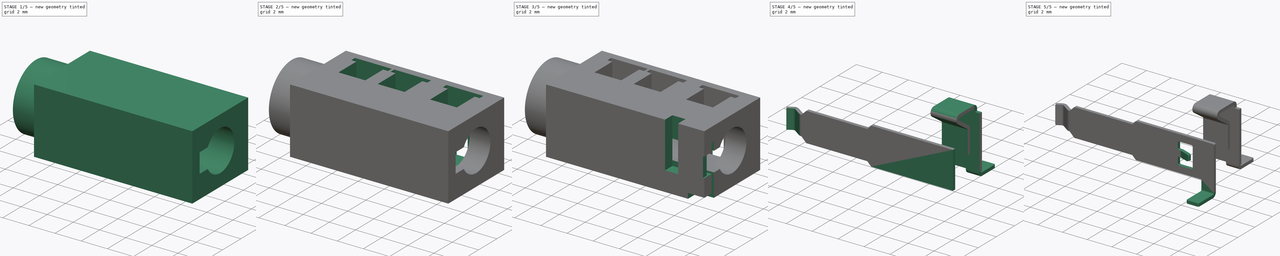
[diagram: build sequence overview — one tinted view per stage of 5, left to right]
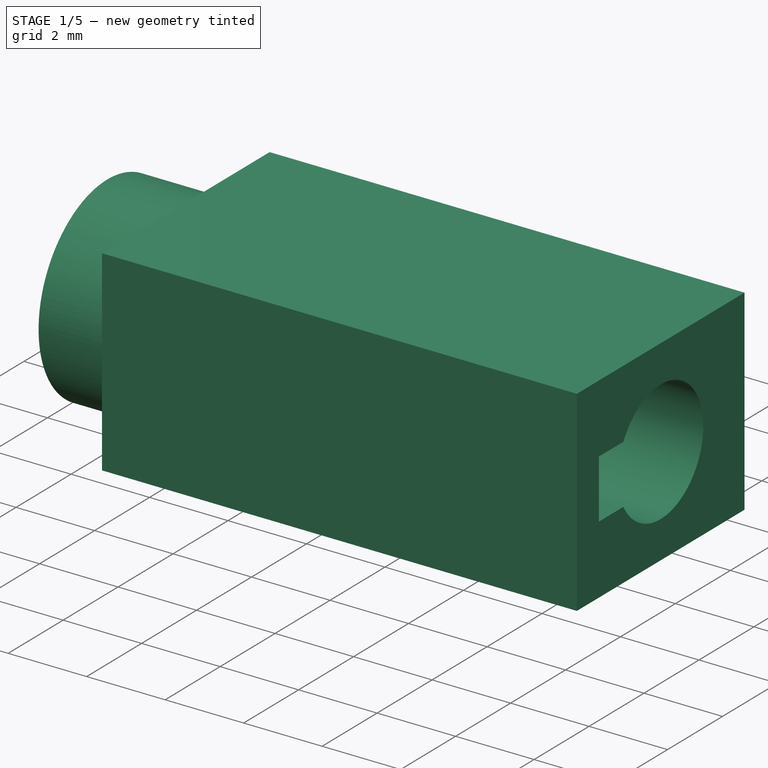
[diagram: stage 1 of 5 — iso view after this stage's code; geometry added in this stage tinted green]
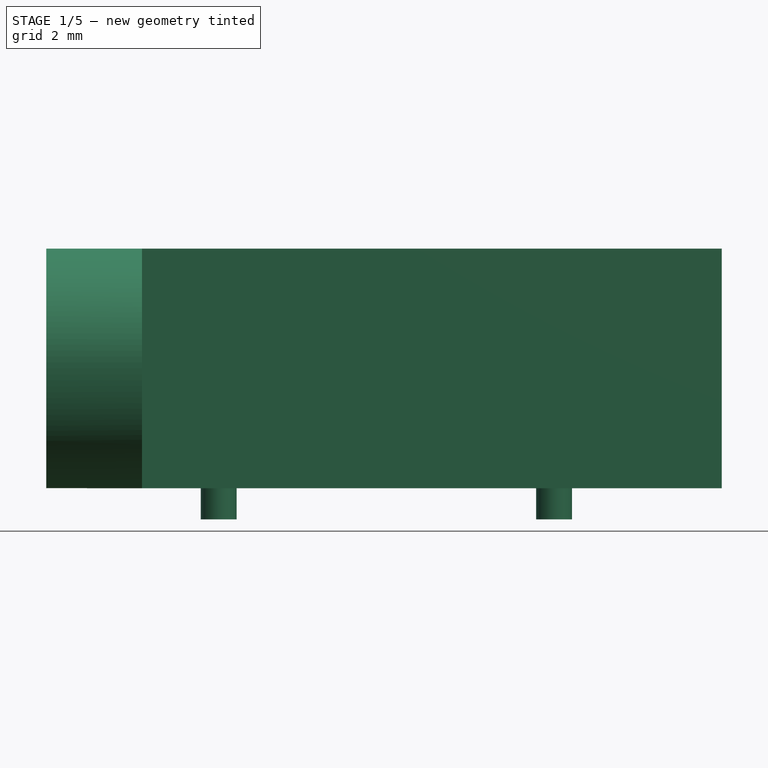
[diagram: stage 1 of 5 — front view after this stage's code; geometry added in this stage tinted green]
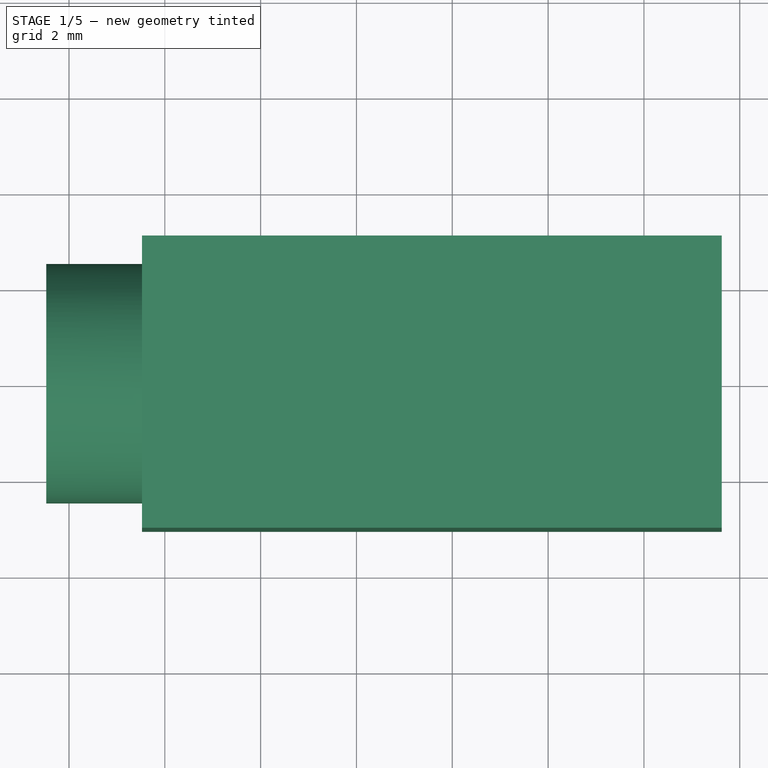
[diagram: stage 1 of 5 — top view after this stage's code; geometry added in this stage tinted green]
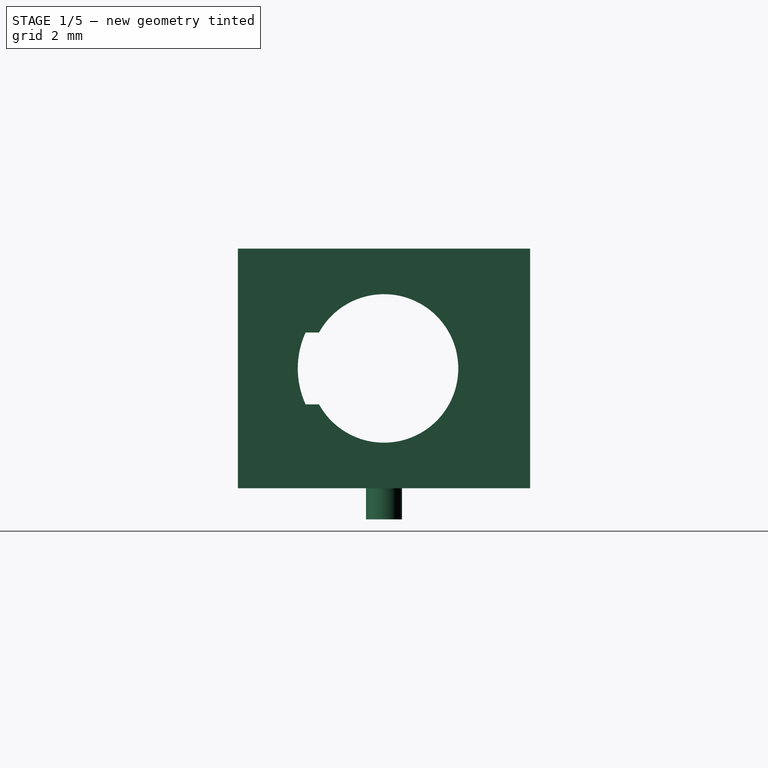
[diagram: stage 1 of 5 — right view after this stage's code; geometry added in this stage tinted green]
FCSTD DOCUMENT  (FreeCAD 1.0R39319 (Git))
Label: Jack_3.5mm_PJ320D_Horizontal
License: All rights reserved
LicenseURL: https://en.wikipedia.org/wiki/All_rights_reserved
objects: Sketcher::SketchObject×23, PartDesign::Pocket×12, PartDesign::Pad×5, PartDesign::Chamfer×5, PartDesign::Body×5, PartDesign::AdditivePipe×5, PartDesign::LinearPattern×4, PartDesign::Fillet×3, Image::ImagePlane×2, PartDesign::SubShapeBinder×2, PartDesign::FeatureBase×2, App::Part×2, App::DocumentObjectGroup×1, PartDesign::Plane×1
note: 156 computed .brp shape members not serialized (recipe doc carries the construction recipe); baked Part::Feature solids carry a one-line shape summary decoded from their .brp

FEATURE [Sketcher::SketchObject] Sketch002
  ArcFitTolerance = 1e-06
  AttachmentSupport = -> [XY_Plane003]
  FullyConstrained = true
  MakeInternals = false
  MapMode = 5
  sketch-geometry (9):
    g0: LineSegment [constr] StartX=-0.675 StartY=4 StartZ=0 EndX=-0.675 EndY=2.5 EndZ=0
    g1: LineSegment [constr] StartX=-0.675 StartY=2.5 StartZ=0 EndX=0.325 EndY=2.5 EndZ=0
    g2: LineSegment [constr] StartX=0.325 StartY=2.5 StartZ=0 EndX=0.325 EndY=4 EndZ=0
    g3: LineSegment [constr] StartX=0.325 StartY=4 StartZ=0 EndX=-0.675 EndY=4 EndZ=0
    g4: GeomPoint [constr] X=-0.175 Y=4 Z=0
    g5: LineSegment StartX=-6.475 StartY=3.05 StartZ=0 EndX=-6.475 EndY=-3.05 EndZ=0
    g6: LineSegment StartX=-6.475 StartY=-3.05 StartZ=0 EndX=5.625 EndY=-3.05 EndZ=0
    g7: LineSegment StartX=5.625 StartY=-3.05 StartZ=0 EndX=5.625 EndY=3.05 EndZ=0
    g8: LineSegment StartX=5.625 StartY=3.05 StartZ=0 EndX=-6.475 EndY=3.05 EndZ=0
  constraints (24):
    c: Coincident(g0,g1)
    c: Coincident(g1,g2)
    c: Coincident(g2,g3)
    c: Coincident(g3,g0)
    c: Vertical(g0)
    c: Vertical(g2)
    c: Horizontal(g1)
    c: Horizontal(g3)
    c: Symmetric(g3,g3,g4)
    c: Distance(g4,g-2) = 0.175
    c: Distance(g3,g3) = 1
    c: DistanceY(g-1,g2) = 4
    c: DistanceY(g0,g0) = 1.5
    c: Coincident(g5,g6)
    c: Coincident(g6,g7)
    c: Coincident(g7,g8)
    c: Coincident(g8,g5)
    c: Vertical(g5)
    c: Horizontal(g6)
    c: Horizontal(g8)
    c: DistanceX(g6,g6) = 12.1
    c: DistanceY(g7,g7) = 6.1
    c: Symmetric(g7,g6,g-1)
    c: DistanceX(g5,g4) = 6.3
FEATURE [PartDesign::Pad] Pad001  label="Pad-Main"
  Direction = (0,0,1)
  Length = 5
  Length2 = 10
  Profile = -> Sketch002
  ReferenceAxis = -> Sketch002 [N_Axis]
  Refine = true
  Suppressed = false
  Type = 0
FEATURE [Sketcher::SketchObject] Sketch003
  ArcFitTolerance = 1e-06
  AttachmentSupport = -> [Pad001]
  FullyConstrained = true
  MakeInternals = false
  MapMode = 5
  Placement = pos=(-6.475,0,0) rot=(0.57735,-0.57735,-0.57735;2.0944rad)
  sketch-geometry (1):
    g0: Circle CenterX=0 CenterY=2.5 CenterZ=0 NormalX=0 NormalY=0 NormalZ=1 AngleXU=0 Radius=2.5
  constraints (3):
    c: PointOnObject(g0,g-2)
    c: DistanceY(g-1,g0) = 2.5
    c: Diameter(g0) = 5
FEATURE [PartDesign::Pad] Pad002  label="Pad-Front"
  BaseFeature = -> Pad001
  Direction = (-1,0,0)
  Length = 2
  Length2 = 10
  Profile = -> Sketch003
  ReferenceAxis = -> Sketch003 [N_Axis]
  Refine = true
  Suppressed = false
  Type = 0
FEATURE [Sketcher::SketchObject] Sketch004
  ArcFitTolerance = 1e-06
  AttachmentSupport = -> [Pad002]
  ExternalGeometry = -> [Pad002]
  FullyConstrained = true
  MakeInternals = false
  MapMode = 5
  Placement = pos=(-6.475,0,0) rot=(0.57735,-0.57735,-0.57735;2.0944rad)
  sketch-geometry (1):
    g0: Circle CenterX=0 CenterY=2.5 CenterZ=0 NormalX=0 NormalY=0 NormalZ=1 AngleXU=0 Radius=1.8
  constraints (2):
    c: Coincident(g0,g-3)
    c: Diameter(g0) = 3.6
FEATURE [PartDesign::Pocket] Pocket  label="Pocket-Hole-Front"
  BaseFeature = -> Pad002
  Direction = (1,0,0)
  Length = 5
  Length2 = 5
  Profile = -> Sketch004
  ReferenceAxis = -> Sketch004 [N_Axis]
  Refine = true
  Reversed = true
  Suppressed = false
  Type = 1
FEATURE [PartDesign::Pocket] Pocket001  label="Pocket-Hole-Back"
  BaseFeature = -> Pocket
  Direction = (1,0,0)
  Length = 10.15
  Length2 = 5
  Profile = -> Sketch004
  ReferenceAxis = -> Sketch004 [N_Axis]
  Refine = true
  Suppressed = false
  Type = 0
FEATURE [Sketcher::SketchObject] Sketch005
  ArcFitTolerance = 1e-06
  AttachmentSupport = -> [Pocket001]
  ExternalGeometry = -> [Pocket001]
  FullyConstrained = true
  MakeInternals = false
  MapMode = 5
  Placement = pos=(3.675,0,0) rot=(0.57735,-0.57735,-0.57735;2.0944rad)
  sketch-geometry (4):
    g0: ArcOfCircle CenterX=0 CenterY=2.5 CenterZ=0 NormalX=0 NormalY=0 NormalZ=1 AngleXU=0 Radius=1.55 StartAngle=0.505073 EndAngle=5.77811
    g1: LineSegment StartX=1.35647 StartY=3.25 StartZ=0 EndX=2.25 EndY=3.25 EndZ=0
    g2: LineSegment StartX=2.25 StartY=3.25 StartZ=0 EndX=2.25 EndY=1.75 EndZ=0
    g3: LineSegment StartX=2.25 StartY=1.75 StartZ=0 EndX=1.35647 EndY=1.75 EndZ=0
  constraints (12):
    c: Coincident(g0,g-3)
    c: Diameter(g0) = 3.1
    c: Coincident(g2,g1)
    c: Vertical(g2)
    c: Coincident(g3,g2)
    c: Horizontal(g3)
    c: Horizontal(g1)
    c: Equal(g1,g3)
    c: DistanceY(g2,g2) = 1.5
    c: Distance(g1,g-4) = 0.8
    c: Coincident(g0,g3)
    c: Coincident(g0,g1)
FEATURE [PartDesign::Pocket] Pocket002  label="Pocket-Hole-ThroughBack"
  BaseFeature = -> Pocket001
  Direction = (1,0,0)
  Length = 5
  Length2 = 5
  Profile = -> Sketch005
  ReferenceAxis = -> Sketch005 [N_Axis]
  Refine = true
  Suppressed = false
  Type = 1
FEATURE [PartDesign::Pocket] Pocket003  label="Pocket-SideChannel"
  BaseFeature = -> Pocket002
  Direction = (1,0,0)
  Length = 0
  Length2 = 5
  Offset = 0.75
  Profile = -> Sketch005
  ReferenceAxis = -> Sketch005 [N_Axis]
  Refine = true
  Reversed = true
  Suppressed = false
  Type = 3
  UpToFace = -> Pocket002 [Face2]
FEATURE [Sketcher::SketchObject] Sketch006
  ArcFitTolerance = 1e-06
  AttachmentSupport = -> [Pocket003]
  ExternalGeometry = -> [Pocket003]
  FullyConstrained = true
  MakeInternals = false
  MapMode = 5
  Placement = pos=(0,0,0) rot=(1,0,0;3.14159rad)
  sketch-geometry (2):
    g0: Circle CenterX=-4.875 CenterY=0 CenterZ=0 NormalX=0 NormalY=0 NormalZ=1 AngleXU=0 Radius=0.375
    g1: Circle CenterX=2.125 CenterY=0 CenterZ=0 NormalX=0 NormalY=0 NormalZ=1 AngleXU=0 Radius=0.375
  constraints (6):
    c: PointOnObject(g0,g-1)
    c: PointOnObject(g1,g-1)
    c: DistanceX(g-3,g0) = 1.6
    c: DistanceX(g0,g1) = 7
    c: Equal(g0,g1)
    c: Diameter(g1) = 0.75
FEATURE [PartDesign::Pad] Pad003  label="Pad-AlignmentPins"
  BaseFeature = -> Pocket003
  Direction = (0,0,-1)
  Length = 0.65
  Length2 = 10
  Profile = -> Sketch006
  ReferenceAxis = -> Sketch006 [N_Axis]
  Refine = true
  Suppressed = false
  Type = 0
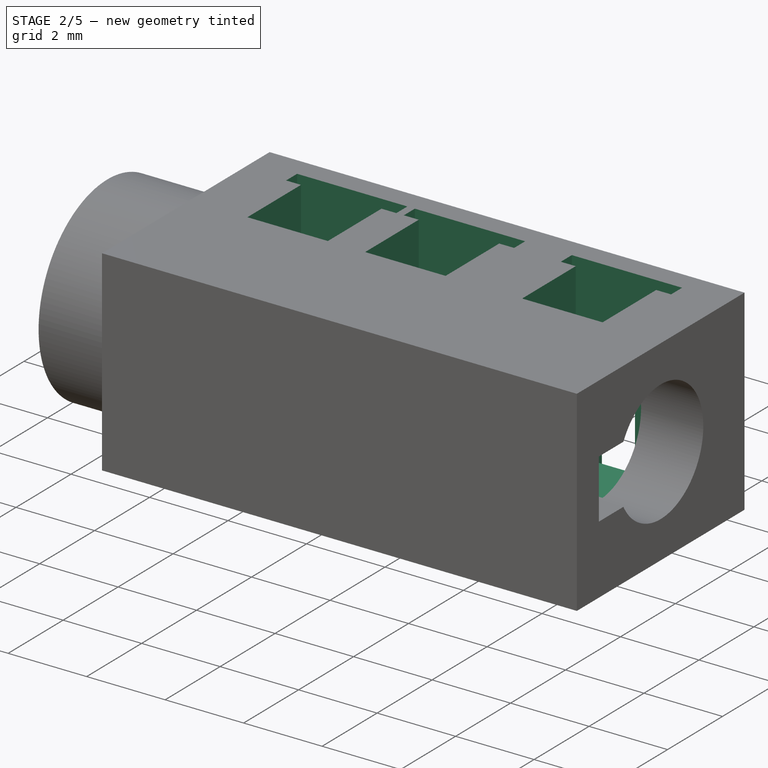
[diagram: stage 2 of 5 — iso view after this stage's code; geometry added in this stage tinted green]
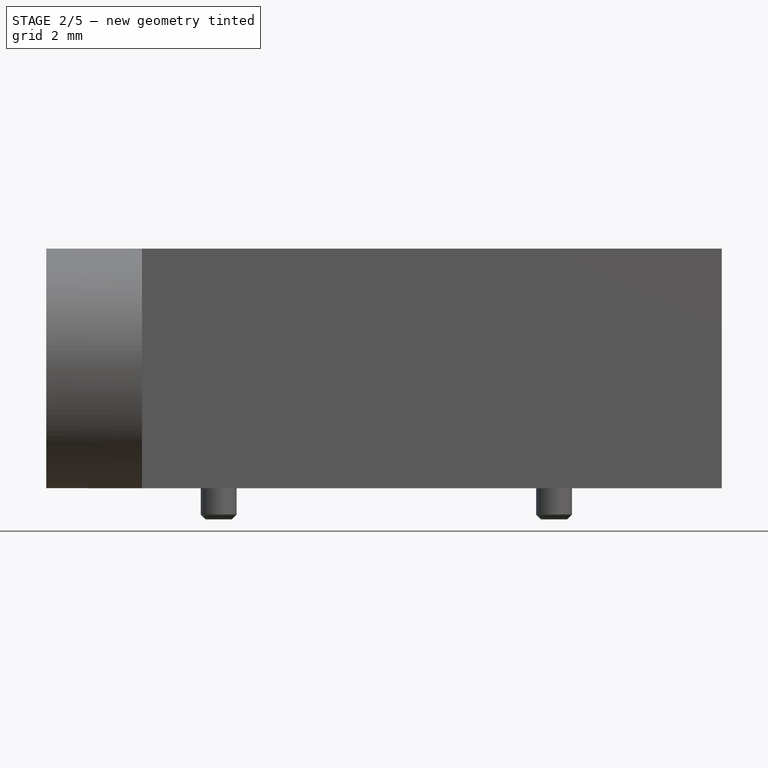
[diagram: stage 2 of 5 — front view after this stage's code; geometry added in this stage tinted green]
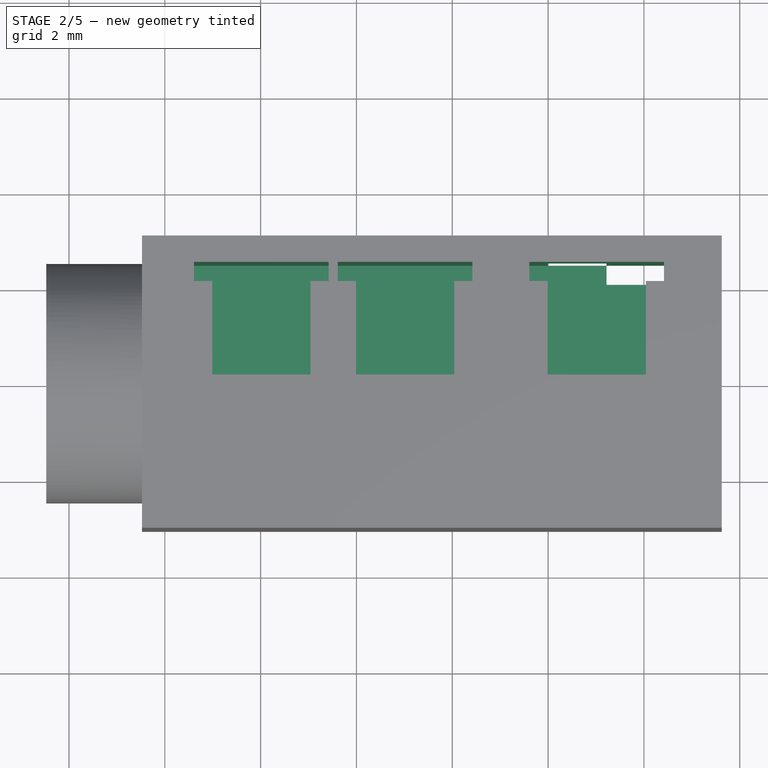
[diagram: stage 2 of 5 — top view after this stage's code; geometry added in this stage tinted green]
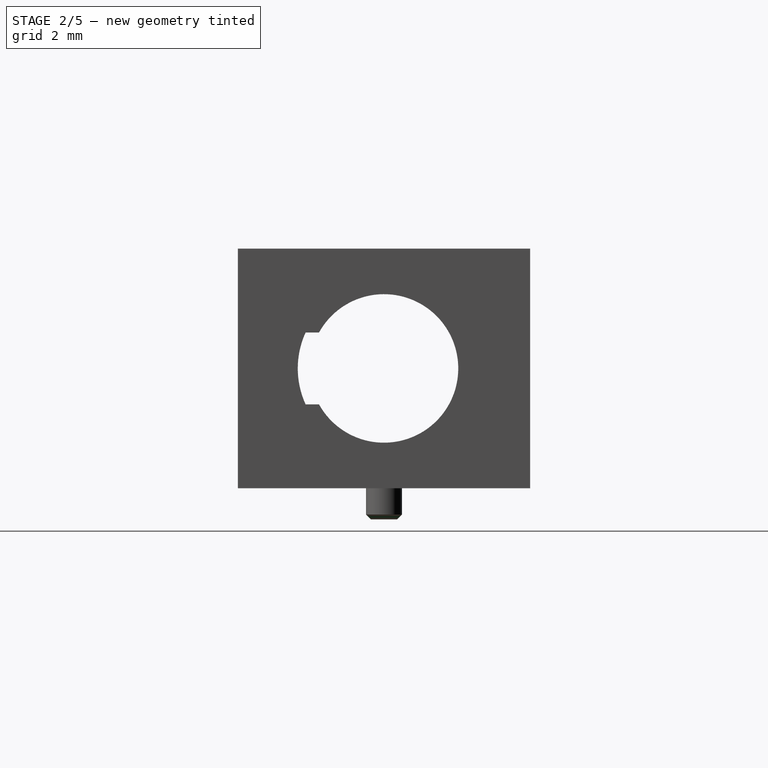
[diagram: stage 2 of 5 — right view after this stage's code; geometry added in this stage tinted green]
FEATURE [PartDesign::Chamfer] Chamfer  label="Chamfer-AlignmentPins"
  Angle = 45
  Base = -> Pad003 [Edge44,Edge46]
  BaseFeature = -> Pad003
  ChamferType = 0
  FlipDirection = false
  Refine = true
  Size = 0.1
  Size2 = 1
  SupportTransform = false
  Suppressed = false
  UseAllEdges = false
FEATURE [PartDesign::Chamfer] Chamfer001  label="Chamfer-FrontHole"
  Angle = 45
  Base = -> Chamfer [Edge46]
  BaseFeature = -> Chamfer
  ChamferType = 0
  FlipDirection = false
  Refine = true
  Size = 0.2
  Size2 = 1
  SupportTransform = false
  Suppressed = false
  UseAllEdges = false
FEATURE [Sketcher::SketchObject] Sketch007
  ArcFitTolerance = 1e-06
  AttachmentSupport = -> [Chamfer001]
  ExternalGeometry = -> [Chamfer001]
  FullyConstrained = true
  MakeInternals = false
  MapMode = 5
  Placement = pos=(0,0,5) rot=(0,0,1;0rad)
  sketch-geometry (8):
    g0: LineSegment StartX=4.42 StartY=2.5 StartZ=0 EndX=1.61 EndY=2.5 EndZ=0
    g1: LineSegment StartX=1.61 StartY=2.5 StartZ=0 EndX=1.61 EndY=2.1 EndZ=0
    g2: LineSegment StartX=1.61 StartY=2.1 StartZ=0 EndX=1.99 EndY=2.1 EndZ=0
    g3: LineSegment StartX=1.99 StartY=2.1 StartZ=0 EndX=1.99 EndY=0.15 EndZ=0
    g4: LineSegment StartX=1.99 StartY=0.15 StartZ=0 EndX=4.04 EndY=0.15 EndZ=0
    g5: LineSegment StartX=4.04 StartY=0.15 StartZ=0 EndX=4.04 EndY=2.1 EndZ=0
    g6: LineSegment StartX=4.04 StartY=2.1 StartZ=0 EndX=4.42 EndY=2.1 EndZ=0
    g7: LineSegment StartX=4.42 StartY=2.1 StartZ=0 EndX=4.42 EndY=2.5 EndZ=0
  constraints (24):
    c: Horizontal(g0)
    c: Coincident(g0,g1)
    c: Coincident(g1,g2)
    c: Coincident(g2,g3)
    c: Vertical(g3)
    c: Coincident(g3,g4)
    c: Horizontal(g4)
    c: Coincident(g4,g5)
    c: Vertical(g5)
    c: Coincident(g5,g6)
    c: Horizontal(g6)
    c: Coincident(g6,g7)
    c: Coincident(g7,g0)
    c: Vertical(g1)
    c: Horizontal(g2)
    c: Vertical(g7)
    c: Horizontal(g5,g2)
    c: Equal(g2,g6)
    c: DistanceX(g4,g4) = 2.05
    c: Distance(g1,g1) = 0.4
    c: DistanceX(g0,g0) = 2.81
    c: Distance(g4,g0) = 2.35
    c: Distance(g0,g-3) = 0.55
    c: Distance(g0,g-2) = 1.61
FEATURE [Image::ImagePlane] _026_02_23_215650_hyprshot  label="TopView"
  Placement = pos=(-0.815,0.56,6) rot=(0,0,1;0rad)
  XSize = 19.6176
  YSize = 10.0777
FEATURE [PartDesign::Pocket] Pocket004  label="Pocket-SpringHole"
  BaseFeature = -> Chamfer001
  Direction = (0,0,-1)
  Length = 0
  Length2 = 5
  Offset = -0.4
  Profile = -> Sketch007
  ReferenceAxis = -> Sketch007 [N_Axis]
  Refine = true
  Suppressed = false
  Type = 3
  UpToFace = -> Chamfer001 [Face11]
FEATURE [PartDesign::LinearPattern] LinearPattern  label="LinearPattern-SpringHole"
  BaseFeature = -> Pocket004
  Direction = -> X_Axis003
  Length = 4
  Mode = 0
  Occurrences = 2
  Offset = 4
  Originals = -> [Pocket004]
  Refine = true
  Reversed = true
  Suppressed = false
  TransformMode = 0
FEATURE [PartDesign::LinearPattern] LinearPattern001  label="LinearPattern-SpringHole001"
  BaseFeature = -> LinearPattern
  Direction = -> X_Axis003
  Length = 7
  Mode = 0
  Occurrences = 2
  Offset = 7
  Originals = -> [Pocket004]
  Refine = true
  Reversed = true
  Suppressed = false
  TransformMode = 0
FEATURE [Sketcher::SketchObject] Sketch008
  ArcFitTolerance = 1e-06
  AttachmentSupport = -> [LinearPattern001]
  ExternalGeometry = -> [LinearPattern001]
  FullyConstrained = true
  MakeInternals = false
  MapMode = 5
  Placement = pos=(0,0,0) rot=(1,0,0;3.14159rad)
  sketch-geometry (4):
    g0: LineSegment StartX=4.42 StartY=-2.1 StartZ=0 EndX=4.42 EndY=-3.05 EndZ=0
    g1: LineSegment StartX=4.42 StartY=-3.05 StartZ=0 EndX=3.22 EndY=-3.05 EndZ=0
    g2: LineSegment StartX=3.22 StartY=-3.05 StartZ=0 EndX=3.22 EndY=-2.1 EndZ=0
    g3: LineSegment StartX=3.22 StartY=-2.1 StartZ=0 EndX=4.42 EndY=-2.1 EndZ=0
  constraints (12):
    c: Vertical(g0)
    c: Coincident(g1,g0)
    c: Horizontal(g1)
    c: Coincident(g2,g1)
    c: Vertical(g2)
    c: Coincident(g3,g2)
    c: Coincident(g3,g0)
    c: DistanceX(g1,g1) = 1.2
    c: PointOnObject(g0,g-4)
    c: Horizontal(g3)
    c: PointOnObject(g-3,g0)
    c: Distance(g-3,g0) = 0.4
FEATURE [Image::ImagePlane] _026_02_23_223229_hyprshot  label="BottomView"
  Placement = pos=(-1.8,2.65,-1) rot=(0,-1,0;3.14159rad)
  XSize = 21.6149
  YSize = 13.6949
FEATURE [App::DocumentObjectGroup] Group  label="References"
  Group = -> [_026_02_23_215650_hyprshot,_026_02_23_223229_hyprshot]
FEATURE [PartDesign::Pocket] Pocket005  label="Pocket-PinHole"
  BaseFeature = -> LinearPattern001
  Direction = (0,0,1)
  Length = 0.4
  Length2 = 5
  Profile = -> Sketch008
  ReferenceAxis = -> Sketch008 [N_Axis]
  Refine = true
  Suppressed = false
  Type = 0
FEATURE [Sketcher::SketchObject] Sketch010
  ArcFitTolerance = 1e-06
  ExternalGeometry = -> [Pocket005]
  FullyConstrained = true
  MakeInternals = false
  MapMode = 5
  Placement = pos=(0,0,0) rot=(1,0,0;3.14159rad)
  sketch-geometry (4):
    g0: LineSegment StartX=3.22 StartY=-3.05 StartZ=0 EndX=3.22 EndY=-2.5 EndZ=0
    g1: LineSegment StartX=3.22 StartY=-2.5 StartZ=0 EndX=1.99 EndY=-2.5 EndZ=0
    g2: LineSegment StartX=1.99 StartY=-2.5 StartZ=0 EndX=1.99 EndY=-3.05 EndZ=0
    g3: LineSegment StartX=1.99 StartY=-3.05 StartZ=0 EndX=3.22 EndY=-3.05 EndZ=0
  constraints (10):
    c: Coincident(g0,g1)
    c: Coincident(g1,g2)
    c: Coincident(g2,g3)
    c: Coincident(g3,g0)
    c: Vertical(g2)
    c: Horizontal(g1)
    c: Horizontal(g3)
    c: Coincident(g0,g-3)
    c: Coincident(g-3,g0)
    c: Vertical(g-4,g1)
FEATURE [PartDesign::Pocket] Pocket007  label="Pocket-SideHole"
  BaseFeature = -> Pocket005
  Direction = (0,0,1)
  Length = 3
  Length2 = 5
  Profile = -> Sketch010
  ReferenceAxis = -> Sketch010 [N_Axis]
  Refine = true
  Suppressed = false
  Type = 0
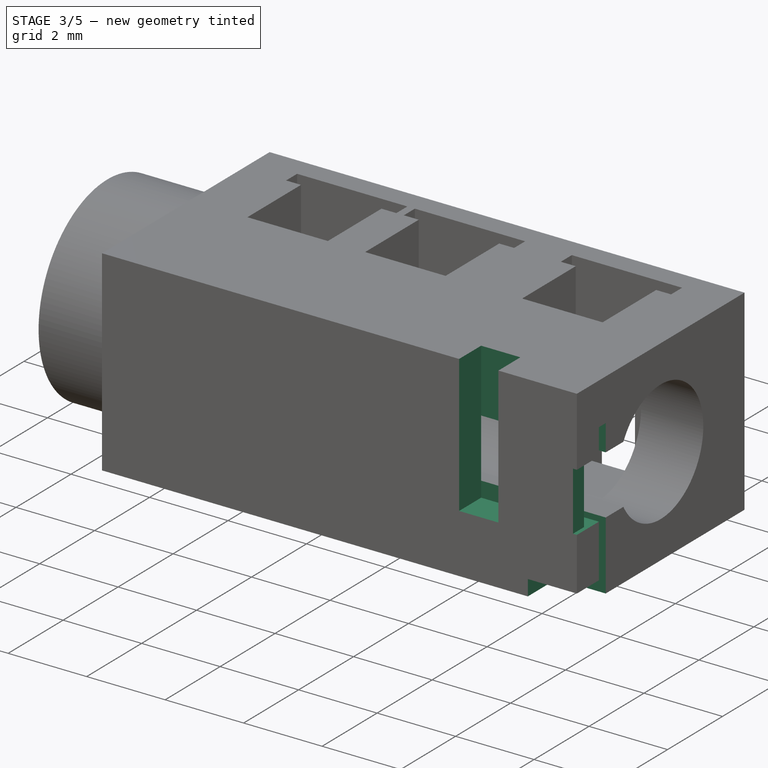
[diagram: stage 3 of 5 — iso view after this stage's code; geometry added in this stage tinted green]
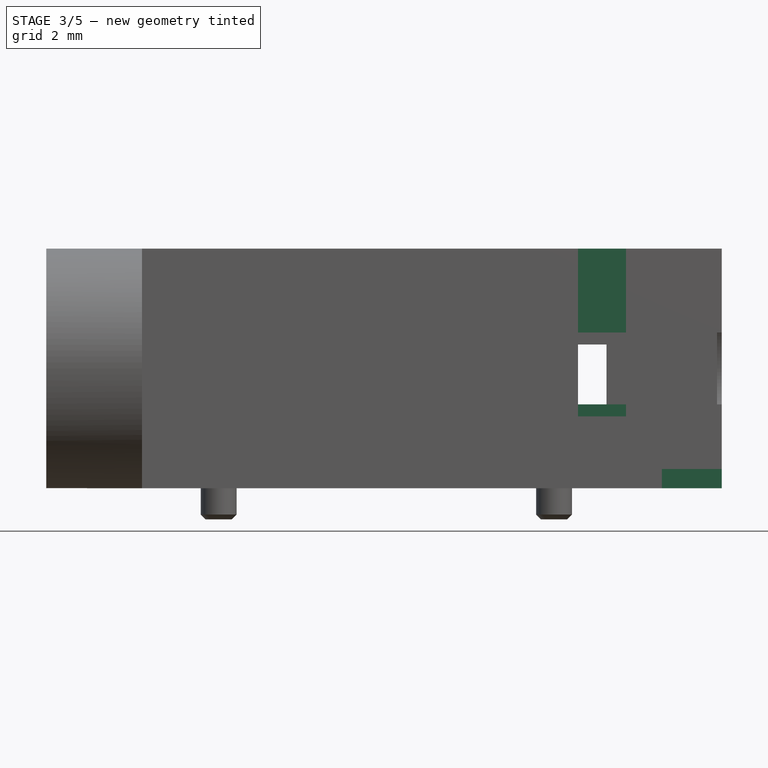
[diagram: stage 3 of 5 — front view after this stage's code; geometry added in this stage tinted green]
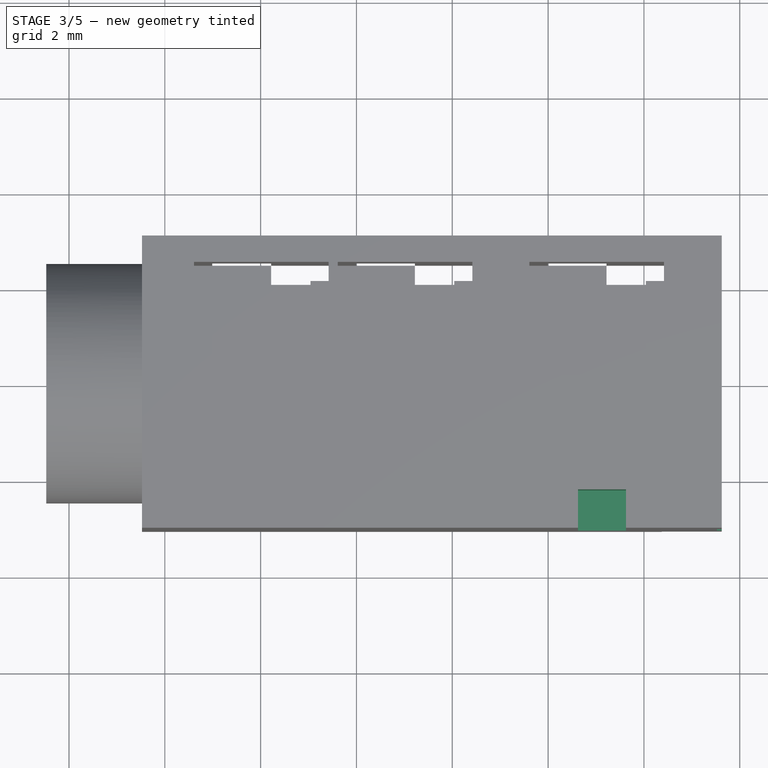
[diagram: stage 3 of 5 — top view after this stage's code; geometry added in this stage tinted green]
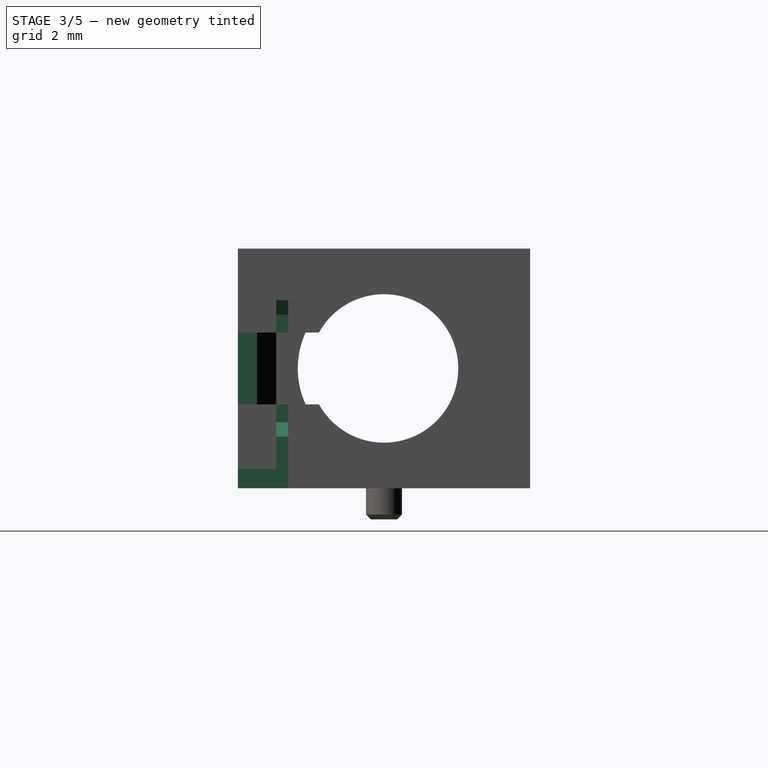
[diagram: stage 3 of 5 — right view after this stage's code; geometry added in this stage tinted green]
FEATURE [PartDesign::LinearPattern] LinearPattern002  label="LinearPattern-PinHole"
  BaseFeature = -> Pocket007
  Direction = -> X_Axis003
  Length = 4
  Mode = 0
  Occurrences = 2
  Offset = 4
  Originals = -> [Pocket007,Pocket005]
  Refine = true
  Reversed = true
  Suppressed = false
  TransformMode = 0
FEATURE [PartDesign::LinearPattern] LinearPattern003  label="LinearPattern-PinHole001"
  BaseFeature = -> LinearPattern002
  Direction = -> Sketch010 [H_Axis]
  Length = 7
  Mode = 0
  Occurrences = 2
  Offset = 7
  Originals = -> [Pocket007,Pocket005]
  Refine = true
  Reversed = true
  Suppressed = false
  TransformMode = 0
FEATURE [Sketcher::SketchObject] Sketch011
  ArcFitTolerance = 1e-06
  AttachmentSupport = -> [LinearPattern003]
  ExternalGeometry = -> [LinearPattern003]
  FullyConstrained = true
  MakeInternals = false
  MapMode = 5
  Placement = pos=(5.625,-8e-16,0) rot=(0.57735,0.57735,0.57735;2.0944rad)
  sketch-geometry (6):
    g0: LineSegment StartX=-2.25 StartY=3.625 StartZ=0 EndX=-2.25 EndY=1.375 EndZ=0
    g1: LineSegment StartX=-2.25 StartY=1.375 StartZ=0 EndX=-2 EndY=1.375 EndZ=0
    g2: LineSegment StartX=-2 StartY=1.375 StartZ=0 EndX=-2 EndY=3.625 EndZ=0
    g3: LineSegment StartX=-2 StartY=3.625 StartZ=0 EndX=-2.25 EndY=3.625 EndZ=0
    g4: LineSegment [constr] StartX=-2.25 StartY=3.25 StartZ=0 EndX=-2 EndY=3.625 EndZ=0
    g5: LineSegment [constr] StartX=-2.25 StartY=1.75 StartZ=0 EndX=-2 EndY=1.375 EndZ=0
  constraints (16):
    c: Coincident(g0,g1)
    c: Coincident(g1,g2)
    c: Coincident(g2,g3)
    c: Coincident(g3,g0)
    c: Vertical(g0)
    c: Vertical(g2)
    c: Horizontal(g1)
    c: Horizontal(g3)
    c: PointOnObject(g-3,g0)
    c: Coincident(g4,g-3)
    c: Coincident(g4,g2)
    c: Coincident(g5,g-3)
    c: Coincident(g5,g1)
    c: Equal(g5,g4)
    c: DistanceX(g3,g3) = 0.25
    c: DistanceY(g2,g2) = 2.25
FEATURE [PartDesign::Pocket] Pocket008  label="Pocket-WidenSideChannel"
  BaseFeature = -> LinearPattern003
  Direction = (-1,0,0)
  Length = 11.5
  Length2 = 5
  Profile = -> Sketch011
  ReferenceAxis = -> Sketch011 [N_Axis]
  Refine = true
  Suppressed = false
  Type = 0
FEATURE [Sketcher::SketchObject] Sketch012
  ArcFitTolerance = 1e-06
  AttachmentSupport = -> [Pocket008]
  ExternalGeometry = -> [Pocket008]
  FullyConstrained = true
  MakeInternals = false
  MapMode = 5
  Placement = pos=(5.625,-8e-16,0) rot=(0.57735,0.57735,0.57735;2.0944rad)
  sketch-geometry (6):
    g0: LineSegment StartX=-2.25 StartY=3.925 StartZ=0 EndX=-2.25 EndY=1.075 EndZ=0
    g1: LineSegment StartX=-2.25 StartY=1.075 StartZ=0 EndX=-2 EndY=1.075 EndZ=0
    g2: LineSegment StartX=-2 StartY=1.075 StartZ=0 EndX=-2 EndY=3.925 EndZ=0
    g3: LineSegment StartX=-2 StartY=3.925 StartZ=0 EndX=-2.25 EndY=3.925 EndZ=0
    g4: LineSegment [constr] StartX=-2.25 StartY=3.625 StartZ=0 EndX=-2 EndY=3.925 EndZ=0
    g5: LineSegment [constr] StartX=-2.25 StartY=1.375 StartZ=0 EndX=-2 EndY=1.075 EndZ=0
  constraints (16):
    c: Coincident(g0,g1)
    c: Coincident(g1,g2)
    c: Coincident(g2,g3)
    c: Coincident(g3,g0)
    c: Vertical(g0)
    c: Vertical(g2)
    c: Horizontal(g1)
    c: Horizontal(g3)
    c: PointOnObject(g-3,g0)
    c: PointOnObject(g-4,g2)
    c: Coincident(g4,g-3)
    c: Coincident(g4,g2)
    c: Coincident(g5,g-3)
    c: Coincident(g5,g1)
    c: Equal(g4,g5)
    c: DistanceY(g0,g0) = 2.85
FEATURE [PartDesign::Pocket] Pocket009  label="Pocket-WidenSideChannel001"
  BaseFeature = -> Pocket008
  Direction = (-1,0,0)
  Length = 6.5
  Length2 = 5
  Profile = -> Sketch012
  ReferenceAxis = -> Sketch012 [N_Axis]
  Refine = true
  Suppressed = false
  Type = 0
FEATURE [Sketcher::SketchObject] Sketch013
  ArcFitTolerance = 1e-06
  AttachmentSupport = -> [Pocket009]
  ExternalGeometry = -> [Pocket009]
  FullyConstrained = true
  MakeInternals = false
  MapMode = 5
  Placement = pos=(5.625,-8e-16,0) rot=(0.57735,0.57735,0.57735;2.0944rad)
  sketch-geometry (6):
    g0: LineSegment StartX=-2 StartY=1.075 StartZ=0 EndX=-2 EndY=0 EndZ=0
    g1: LineSegment StartX=-2 StartY=0 StartZ=0 EndX=-3.05 EndY=0 EndZ=0
    g2: LineSegment StartX=-3.05 StartY=0 StartZ=0 EndX=-3.05 EndY=0.4 EndZ=0
    g3: LineSegment StartX=-3.05 StartY=0.4 StartZ=0 EndX=-2.25 EndY=0.4 EndZ=0
    g4: LineSegment StartX=-2.25 StartY=0.4 StartZ=0 EndX=-2.25 EndY=1.075 EndZ=0
    g5: LineSegment StartX=-2.25 StartY=1.075 StartZ=0 EndX=-2 EndY=1.075 EndZ=0
  constraints (15):
    c: Coincident(g0,g-5)
    c: PointOnObject(g0,g-1)
    c: Vertical(g0)
    c: Coincident(g0,g1)
    c: Coincident(g1,g-3)
    c: Coincident(g1,g2)
    c: Coincident(g2,g3)
    c: Horizontal(g3)
    c: Coincident(g3,g4)
    c: Coincident(g4,g-4)
    c: Vertical(g4)
    c: Coincident(g4,g5)
    c: Coincident(g5,g0)
    c: Vertical(g2)
    c: Distance(g2,g2) = 0.4
FEATURE [PartDesign::Pocket] Pocket010  label="Pocket-SidePinLeg"
  BaseFeature = -> Pocket009
  Direction = (-1,0,0)
  Length = 1.25
  Length2 = 5
  Profile = -> Sketch013
  ReferenceAxis = -> Sketch013 [N_Axis]
  Refine = true
  Suppressed = false
  Type = 0
FEATURE [Sketcher::SketchObject] Sketch014
  ArcFitTolerance = 1e-06
  AttachmentSupport = -> [Pocket010]
  ExternalGeometry = -> [Pocket010]
  FullyConstrained = true
  MakeInternals = false
  MapMode = 5
  Placement = pos=(0,-3.05,0) rot=(1,0,0;1.5708rad)
  sketch-geometry (9):
    g0: LineSegment StartX=5.625 StartY=3.25 StartZ=0 EndX=5.525 EndY=3.25 EndZ=0
    g1: LineSegment StartX=5.525 StartY=3.25 StartZ=0 EndX=5.525 EndY=1.75 EndZ=0
    g2: LineSegment StartX=5.525 StartY=1.75 StartZ=0 EndX=5.625 EndY=1.75 EndZ=0
    g3: LineSegment StartX=5.625 StartY=1.75 StartZ=0 EndX=5.625 EndY=3.25 EndZ=0
    g4: LineSegment StartX=3.625 StartY=5 StartZ=0 EndX=2.625 EndY=5 EndZ=0
    g5: LineSegment StartX=2.625 StartY=5 StartZ=0 EndX=2.625 EndY=1.5 EndZ=0
    g6: LineSegment StartX=2.625 StartY=1.5 StartZ=0 EndX=3.625 EndY=1.5 EndZ=0
    g7: LineSegment StartX=3.625 StartY=1.5 StartZ=0 EndX=3.625 EndY=5 EndZ=0
    g8: GeomPoint X=5.625 Y=2.5 Z=0
  constraints (24):
    c: Coincident(g0,g1)
    c: Coincident(g1,g2)
    c: Coincident(g2,g3)
    c: Coincident(g3,g0)
    c: Horizontal(g0)
    c: Horizontal(g2)
    c: Vertical(g1)
    c: Vertical(g3)
    c: Coincident(g4,g5)
    c: Coincident(g5,g6)
    c: Coincident(g6,g7)
    c: Coincident(g7,g4)
    c: Horizontal(g4)
    c: Horizontal(g6)
    c: Vertical(g5)
    c: Vertical(g7)
    c: PointOnObject(g4,g-4)
    c: Distance(g0,g0) = 0.1
    c: DistanceY(g3,g3) = 1.5
    c: Symmetric(g3,g3,g8)
    c: Symmetric(g-4,g-5,g8)
    c: DistanceX(g6,g6) = 1
    c: Distance(g5,g-1) = 1.5
    c: Distance(g6,g-3) = 2
FEATURE [PartDesign::Pocket] Pocket011  label="Pocket-SidePinLockHole"
  BaseFeature = -> Pocket010
  Direction = (0,1,-2e-16)
  Length = 5
  Length2 = 5
  Profile = -> Sketch014
  ReferenceAxis = -> Sketch014 [N_Axis]
  Refine = true
  Suppressed = false
  Type = 2
FEATURE [PartDesign::Chamfer] Chamfer002  label="Chamfer-SidePin"
  Angle = 45
  Base = -> Pocket011 [Edge169]
  BaseFeature = -> Pocket011
  ChamferType = 0
  FlipDirection = false
  Refine = true
  Size = 0.4
  Size2 = 1
  SupportTransform = false
  Suppressed = false
  UseAllEdges = false
FEATURE [PartDesign::Chamfer] Chamfer003
  Angle = 45
  Base = -> Chamfer002 [Edge67,Edge68]
  BaseFeature = -> Chamfer002
  ChamferType = 0
  FlipDirection = false
  Refine = true
  Size = 0.299
  Size2 = 1
  SupportTransform = false
  Suppressed = false
  UseAllEdges = false
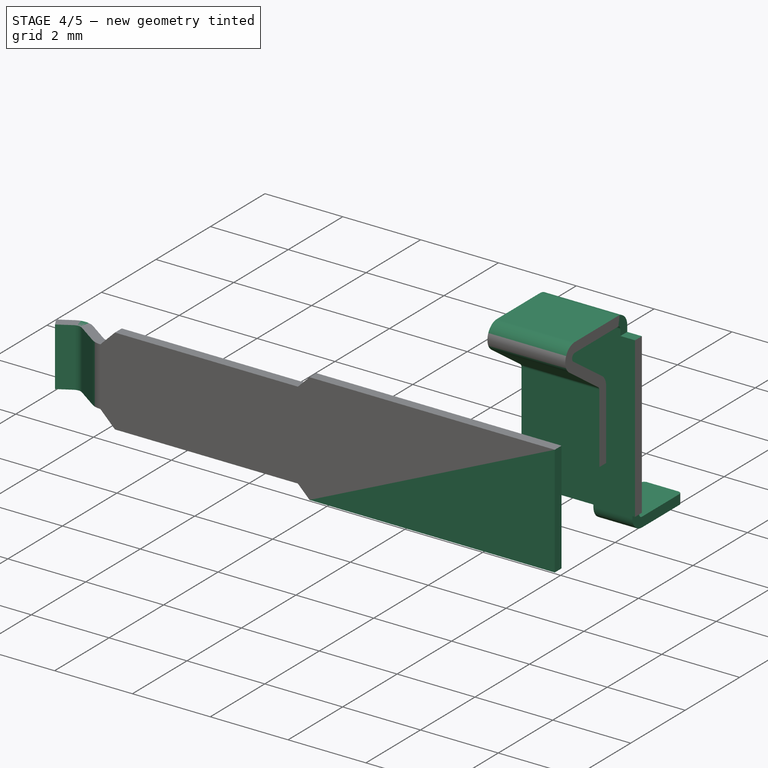
[diagram: stage 4 of 5 — iso view after this stage's code; geometry added in this stage tinted green]
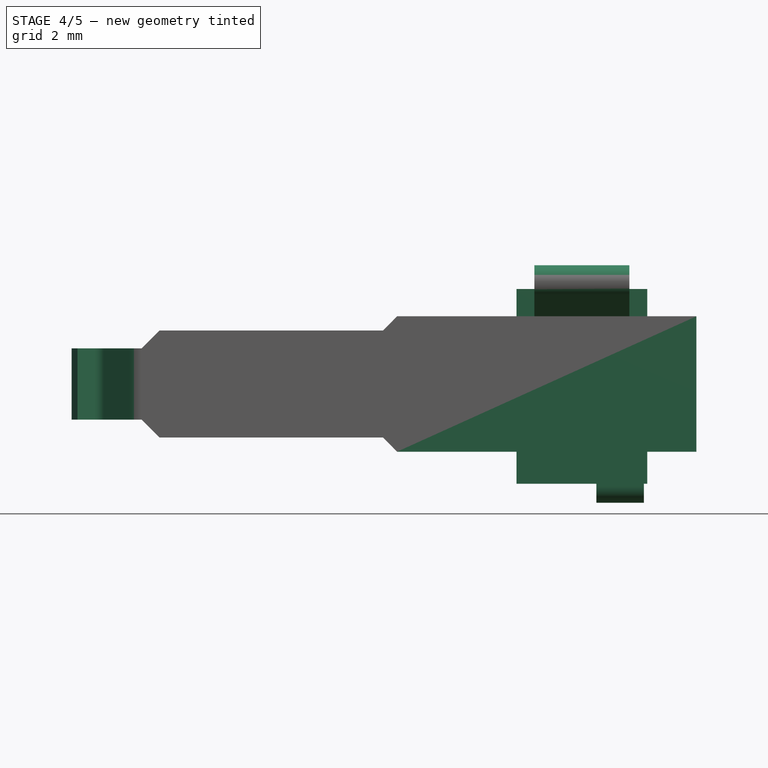
[diagram: stage 4 of 5 — front view after this stage's code; geometry added in this stage tinted green]
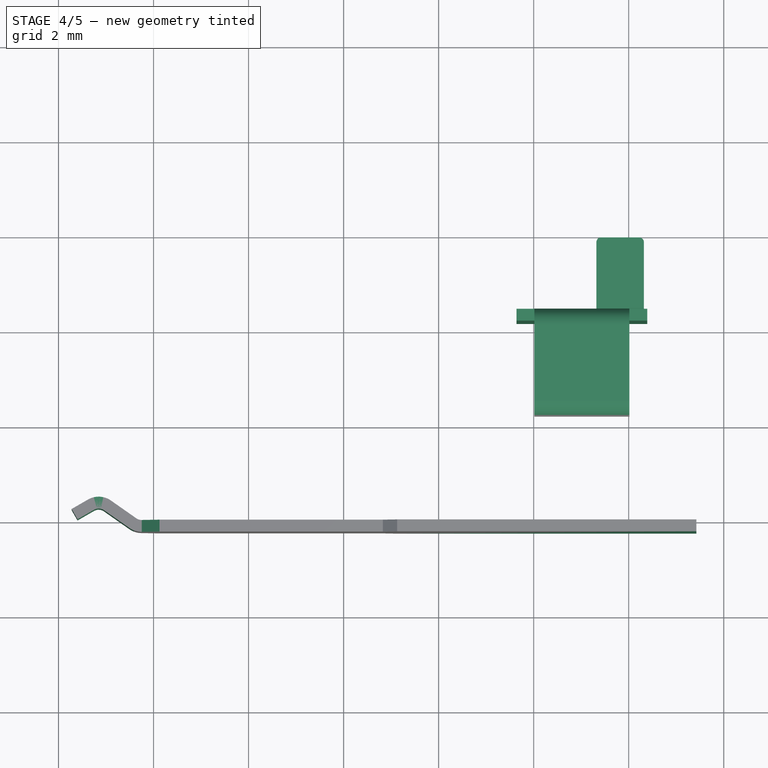
[diagram: stage 4 of 5 — top view after this stage's code; geometry added in this stage tinted green]
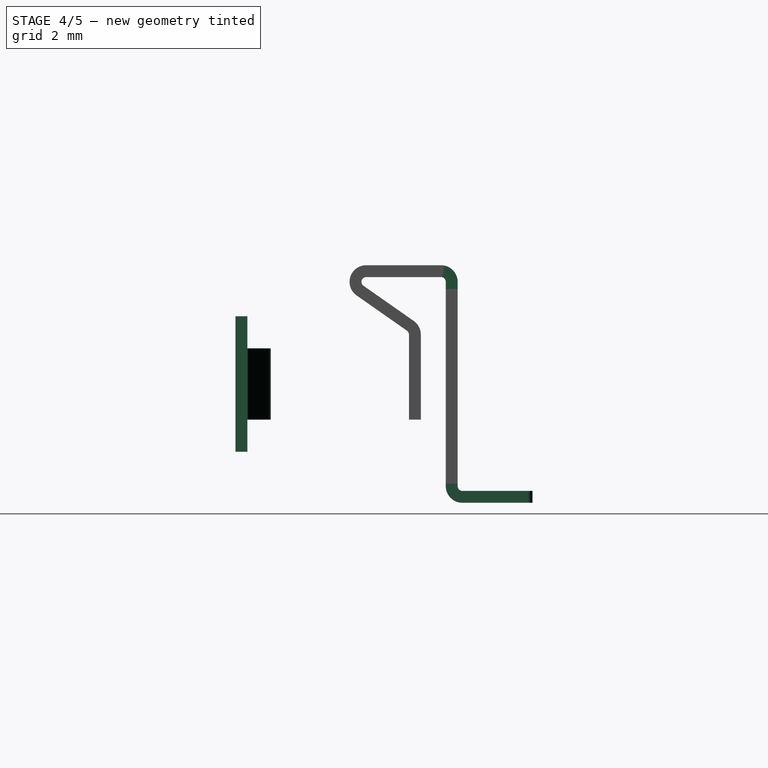
[diagram: stage 4 of 5 — right view after this stage's code; geometry added in this stage tinted green]
FEATURE [PartDesign::Chamfer] Chamfer004
  Angle = 45
  Base = -> Chamfer003 [Edge62,Edge42]
  BaseFeature = -> Chamfer003
  ChamferType = 0
  FlipDirection = false
  Refine = true
  Size = 0.3749
  Size2 = 1
  SupportTransform = false
  Suppressed = false
  UseAllEdges = false
FEATURE [PartDesign::Body] Body001  label="Body"
  AllowCompound = false
  Group = -> [Sketch002,Pad001,Sketch003,Pad002,Sketch004,Pocket,Pocket001,Sketch005,Pocket002,Pocket003,Sketch006,Pad003,Chamfer,Chamfer001,Sketch007,Pocket004,LinearPattern,LinearPattern001,Sketch008,Pocket005,Sketch010,Pocket007,LinearPattern002,LinearPattern003,Sketch011,Pocket008,Sketch012,Pocket009,Sketch013,Pocket010,Sketch014,Pocket011,Chamfer002,Chamfer003,Chamfer004]
  Origin = -> Origin003
  Tip = -> Chamfer004
FEATURE [PartDesign::SubShapeBinder] Binder  label="Binder-Body"
  BindCopyOnChange = 0
  BindMode = 0
  ClaimChildren = false
  Context = -> Part [Part001.Body.Binder.]
  Fuse = false
  MakeFace = true
  OffsetFill = false
  OffsetIntersection = false
  OffsetJoinType = 0
  OffsetOpenResult = false
  PartialLoad = false
  Refine = true
  Relative = true
  Support = -> [Body001]
  _Version = 2
FEATURE [Sketcher::SketchObject] Sketch016
  ArcFitTolerance = 1e-06
  AttachmentSupport = -> [Binder]
  ExternalGeometry = -> [Binder]
  FullyConstrained = true
  MakeInternals = false
  MapMode = 5
  Placement = pos=(0,-2.25,0) rot=(0,0.707107,0.707107;3.14159rad)
  sketch-geometry (10):
    g0: LineSegment StartX=0.875 StartY=1.075 StartZ=0 EndX=-5.425 EndY=1.075 EndZ=0
    g1: LineSegment StartX=-5.425 StartY=1.075 StartZ=0 EndX=-5.425 EndY=3.925 EndZ=0
    g2: LineSegment StartX=-5.425 StartY=3.925 StartZ=0 EndX=0.875 EndY=3.925 EndZ=0
    g3: LineSegment StartX=0.875 StartY=3.925 StartZ=0 EndX=1.174 EndY=3.625 EndZ=0
    g4: LineSegment StartX=1.174 StartY=3.625 StartZ=0 EndX=5.875 EndY=3.625 EndZ=0
    g5: LineSegment StartX=5.875 StartY=3.625 StartZ=0 EndX=6.2499 EndY=3.25 EndZ=0
    g6: LineSegment StartX=6.2499 StartY=3.25 StartZ=0 EndX=6.2499 EndY=1.75 EndZ=0
    g7: LineSegment StartX=6.2499 StartY=1.75 StartZ=0 EndX=5.875 EndY=1.375 EndZ=0
    g8: LineSegment StartX=5.875 StartY=1.375 StartZ=0 EndX=1.174 EndY=1.375 EndZ=0
    g9: LineSegment StartX=1.174 StartY=1.375 StartZ=0 EndX=0.875 EndY=1.075 EndZ=0
  constraints (23):
    c: Coincident(g-7,g0)
    c: Coincident(g0,g1)
    c: Vertical(g1)
    c: Coincident(g1,g2)
    c: Coincident(g2,g-3)
    c: Horizontal(g2)
    c: Coincident(g2,g3)
    c: Coincident(g3,g-4)
    c: Coincident(g3,g4)
    c: Coincident(g4,g-4)
    c: Coincident(g4,g5)
    c: Coincident(g5,g-5)
    c: Coincident(g5,g6)
    c: Vertical(g6)
    c: Coincident(g6,g7)
    c: Coincident(g7,g-6)
    c: Coincident(g7,g8)
    c: Coincident(g8,g-6)
    c: Coincident(g8,g9)
    c: Coincident(g9,g0)
    c: Equal(g5,g7)
    c: Horizontal(g0)
    c: Distance(g0,g-8) = 0.2
FEATURE [PartDesign::Pad] Pad005
  Direction = (0,1,-2e-16)
  Length = 0.25
  Length2 = 10
  Profile = -> Sketch016
  ReferenceAxis = -> Sketch016 [N_Axis]
  Refine = true
  Suppressed = false
  Type = 0
FEATURE [PartDesign::Plane] DatumPlane
  AttachmentOffset = pos=(0,0,-0.75) rot=(0,0,1;0rad)
  AttachmentSupport = -> [Pad005]
  Length = 60
  MapMode = 7
  Placement = pos=(-6.2499,-2,2.5) rot=(0,0,1;0rad)
  ResizeMode = 0
  Width = 60
FEATURE [Sketcher::SketchObject] Sketch017
  ArcFitTolerance = 1e-06
  AttachmentSupport = -> [DatumPlane]
  ExternalGeometry = -> [Pad005,Binder]
  FullyConstrained = true
  MakeInternals = false
  MapMode = 5
  Placement = pos=(-6.2499,-2,2.5) rot=(0,0,1;0rad)
  sketch-geometry (4):
    g0: ArcOfCircle CenterX=-1.46733e-09 CenterY=0.2 CenterZ=0 NormalX=0 NormalY=0 NormalZ=1 AngleXU=0 Radius=0.2 StartAngle=4.10152 EndAngle=4.71239
    g1: ArcOfCircle CenterX=-0.905274 CenterY=0.0403759 CenterZ=0 NormalX=0 NormalY=0 NormalZ=1 AngleXU=0 Radius=0.45 StartAngle=0.959931 EndAngle=2.0944
    g2: LineSegment StartX=-0.114715 StartY=0.0361696 StartZ=0 EndX=-0.647164 EndY=0.408994 EndZ=0
    g3: LineSegment StartX=-1.13027 StartY=0.430087 StartZ=0 EndX=-1.4751 EndY=0.231002 EndZ=0
  constraints (11):
    c: Coincident(g0,g-1)
    c: Tangent(g3,g1) = -1.5708
    c: Tangent(g2,g1) = -1.5708
    c: Tangent(g2,g0) = 1.5708
    c: Tangent(g0,g-3)
    c: Radius(g1) = 0.45
    c: Angle(g2,g-1) = 0.610865
    c: Angle(g-1,g3) = 0.523599
    c: Distance(g2,g2) = 0.65
    c: Vertical(g3,g-4)
    c: Radius(g0) = 0.2
FEATURE [PartDesign::AdditivePipe] AdditivePipe  label="AddativePipe-Contact"
  AuxilleryCurvelinear = true
  AuxillerySpineTangent = false
  BaseFeature = -> Pad005
  Binormal = (0,0,0)
  Mode = 0
  Profile = -> Pad005 [Face7]
  Refine = true
  Spine = -> Sketch017
  SpineTangent = false
  Suppressed = false
  Transformation = 0
  Transition = 0
FEATURE [PartDesign::SubShapeBinder] Binder001  label="Binder-Body001"
  BindCopyOnChange = 0
  BindMode = 0
  ClaimChildren = false
  Context = -> Part [Part001.Body002.Binder001.]
  Fuse = false
  MakeFace = true
  OffsetFill = false
  OffsetIntersection = false
  OffsetJoinType = 0
  OffsetOpenResult = false
  PartialLoad = false
  Refine = true
  Relative = true
  Support = -> [Body001]
  _Version = 2
FEATURE [Sketcher::SketchObject] Sketch
  ArcFitTolerance = 1e-06
  AttachmentSupport = -> [Binder001]
  ExternalGeometry = -> [Binder001]
  FullyConstrained = true
  MakeInternals = false
  MapMode = 5
  Placement = pos=(0,0,0.4) rot=(0,0,1;0rad)
  sketch-geometry (12):
    g0: LineSegment [constr] StartX=1.61 StartY=2.5 StartZ=0 EndX=1.61 EndY=2.1 EndZ=0
    g1: LineSegment [constr] StartX=1.61 StartY=2.1 StartZ=0 EndX=4.42 EndY=2.1 EndZ=0
    g2: LineSegment [constr] StartX=4.42 StartY=2.1 StartZ=0 EndX=4.42 EndY=2.5 EndZ=0
    g3: LineSegment [constr] StartX=4.42 StartY=2.5 StartZ=0 EndX=1.61 EndY=2.5 EndZ=0
    g4: LineSegment StartX=1.64 StartY=2.425 StartZ=0 EndX=1.64 EndY=2.175 EndZ=0
    g5: LineSegment StartX=1.64 StartY=2.175 StartZ=0 EndX=4.39 EndY=2.175 EndZ=0
    g6: LineSegment StartX=4.39 StartY=2.175 StartZ=0 EndX=4.39 EndY=2.425 EndZ=0
    g7: LineSegment StartX=4.39 StartY=2.425 StartZ=0 EndX=1.64 EndY=2.425 EndZ=0
    g8: LineSegment [constr] StartX=1.61 StartY=2.5 StartZ=0 EndX=1.64 EndY=2.425 EndZ=0
    g9: LineSegment [constr] StartX=1.61 StartY=2.1 StartZ=0 EndX=1.64 EndY=2.175 EndZ=0
    g10: LineSegment [constr] StartX=4.42 StartY=2.1 StartZ=0 EndX=4.39 EndY=2.175 EndZ=0
    g11: LineSegment [constr] StartX=4.42 StartY=2.5 StartZ=0 EndX=4.39 EndY=2.425 EndZ=0
  constraints (30):
    c: Coincident(g0,g1)
    c: Coincident(g1,g2)
    c: Coincident(g2,g3)
    c: Coincident(g3,g0)
    c: Vertical(g0)
    c: Vertical(g2)
    c: Horizontal(g1)
    c: Horizontal(g3)
    c: Coincident(g4,g5)
    c: Coincident(g5,g6)
    c: Coincident(g6,g7)
    c: Coincident(g7,g4)
    c: Vertical(g4)
    c: Vertical(g6)
    c: Horizontal(g5)
    c: Horizontal(g7)
    c: Coincident(g8,g0)
    c: Coincident(g8,g4)
    c: Coincident(g9,g1)
    c: Coincident(g9,g5)
    c: Coincident(g10,g2)
    c: Coincident(g10,g6)
    c: Coincident(g11,g3)
    c: Coincident(g11,g7)
    c: Coincident(g0,g-3)
    c: Coincident(g1,g-4)
    c: Distance(g6,g6) = 0.25
    c: Equal(g11,g10)
    c: Equal(g11,g8)
    c: DistanceX(g7,g7) = 2.75
FEATURE [PartDesign::Pad] Pad
  Direction = (0,0,1)
  Length = 10
  Length2 = 10
  Offset = 0.5
  Profile = -> Sketch
  ReferenceAxis = -> Sketch [N_Axis]
  Refine = true
  Suppressed = false
  Type = 3
  UpToFace = -> Binder001 [Face35]
FEATURE [Sketcher::SketchObject] Sketch020  label="Sketch-SpringProfile"
  ArcFitTolerance = 1e-06
  AttachmentSupport = -> [Pad]
  ExternalGeometry = -> [Pad]
  FullyConstrained = true
  MakeInternals = false
  MapMode = 5
  Placement = pos=(0,0,4.5) rot=(0,0,1;0rad)
  sketch-geometry (5):
    g0: LineSegment StartX=2.015 StartY=2.175 StartZ=0 EndX=4.015 EndY=2.175 EndZ=0
    g1: LineSegment StartX=4.015 StartY=2.175 StartZ=0 EndX=4.015 EndY=2.425 EndZ=0
    g2: LineSegment StartX=4.015 StartY=2.425 StartZ=0 EndX=2.015 EndY=2.425 EndZ=0
    g3: LineSegment StartX=2.015 StartY=2.425 StartZ=0 EndX=2.015 EndY=2.175 EndZ=0
    g4: GeomPoint [constr] X=3.015 Y=2.3 Z=0
  constraints (12):
    c: Coincident(g0,g1)
    c: Coincident(g1,g2)
    c: Coincident(g2,g3)
    c: Coincident(g3,g0)
    c: Horizontal(g0)
    c: Horizontal(g2)
    c: Vertical(g1)
    c: Vertical(g3)
    c: Symmetric(g2,g0,g4)
    c: Symmetric(g-3,g-4,g4)
    c: Horizontal(g2,g-3)
    c: DistanceX(g2,g2) = 2
FEATURE [Sketcher::SketchObject] Sketch021  label="Sketch-SpringContour"
  ArcFitTolerance = 1e-06
  AttachmentSupport = -> [Binder001]
  ExternalGeometry = -> [Binder001,Pad]
  FullyConstrained = true
  MakeInternals = false
  MapMode = 5
  Placement = pos=(1.99,0,0) rot=(0.57735,0.57735,0.57735;2.0944rad)
  sketch-geometry (9):
    g0: LineSegment [constr] StartX=0.15 StartY=5 StartZ=0 EndX=0.15 EndY=4.65 EndZ=0
    g1: ArcOfCircle CenterX=2.075 CenterY=4.65 CenterZ=0 NormalX=0 NormalY=0 NormalZ=1 AngleXU=0 Radius=0.35 StartAngle=-9e-16 EndAngle=1.5708
    g2: ArcOfCircle CenterX=0.5 CenterY=4.65 CenterZ=0 NormalX=0 NormalY=0 NormalZ=1 AngleXU=0 Radius=0.35 StartAngle=1.5708 EndAngle=4.10152
    g3: LineSegment StartX=0.5 StartY=5 StartZ=0 EndX=2.075 EndY=5 EndZ=0
    g4: LineSegment StartX=0.299248 StartY=4.3633 StartZ=0 EndX=1.35736 EndY=3.6224 EndZ=0
    g5: ArcOfCircle CenterX=1.3 CenterY=3.54049 CenterZ=0 NormalX=0 NormalY=0 NormalZ=1 AngleXU=0 Radius=0.1 StartAngle=-1.15e-14 EndAngle=0.959931
    g6: LineSegment StartX=1.4 StartY=3.54049 StartZ=0 EndX=1.4 EndY=1.75 EndZ=0
    g7: LineSegment StartX=2.425 StartY=4.65 StartZ=0 EndX=2.425 EndY=4.5 EndZ=0
    g8: Circle [constr] CenterX=0.5 CenterY=4.65 CenterZ=0 NormalX=0 NormalY=0 NormalZ=1 AngleXU=0 Radius=0.1
  constraints (22):
    c: Coincident(g0,g-3)
    c: Vertical(g0)
    c: PointOnObject(g1,g-3)
    c: PointOnObject(g2,g-3)
    c: Tangent(g0,g2) = -1.5708
    c: Tangent(g3,g1) = 1.5708
    c: Tangent(g3,g2) = 1.5708
    c: Equal(g2,g1)
    c: Tangent(g4,g2) = -1.5708
    c: Angle(g4,g3) = 0.610865
    c: Tangent(g5,g4) = 1.5708
    c: Vertical(g6)
    c: Tangent(g6,g5) = 1.5708
    c: Distance(g-2,g6) = 1.4
    c: Coincident(g7,g-4)
    c: Tangent(g7,g1) = 1.5708
    c: Vertical(g7)
    c: Radius(g1) = 0.35
    c: Distance(g6,g3) = 3.25
    c: Coincident(g8,g2)
    c: Distance(g8,g2) = 0.25
    c: Equal(g5,g8)
FEATURE [PartDesign::AdditivePipe] AdditivePipe002  label="AddativePipe-Spring"
  AuxilleryCurvelinear = true
  AuxillerySpineTangent = false
  BaseFeature = -> Pad
  Binormal = (0,0,0)
  Mode = 0
  Profile = -> Sketch020
  Refine = true
  Spine = -> Sketch021
  SpineTangent = false
  Suppressed = false
  Transformation = 0
  Transition = 0
FEATURE [Sketcher::SketchObject] Sketch022  label="Sketch-LegProfile"
  ArcFitTolerance = 1e-06
  AttachmentSupport = -> [AdditivePipe002]
  ExternalGeometry = -> [Binder001,AdditivePipe002]
  FullyConstrained = true
  MakeInternals = false
  MapMode = 5
  Placement = pos=(0,0,0.4) rot=(1,0,0;3.14159rad)
  sketch-geometry (6):
    g0: LineSegment StartX=3.32 StartY=-2.175 StartZ=0 EndX=3.32 EndY=-2.425 EndZ=0
    g1: LineSegment StartX=3.32 StartY=-2.425 StartZ=0 EndX=4.32 EndY=-2.425 EndZ=0
    g2: LineSegment StartX=4.32 StartY=-2.425 StartZ=0 EndX=4.32 EndY=-2.175 EndZ=0
    g3: LineSegment StartX=4.32 StartY=-2.175 StartZ=0 EndX=3.32 EndY=-2.175 EndZ=0
    g4: LineSegment [constr] StartX=3.22 StartY=-2.1 StartZ=0 EndX=3.32 EndY=-2.175 EndZ=0
    g5: LineSegment [constr] StartX=4.32 StartY=-2.175 StartZ=0 EndX=4.42 EndY=-2.1 EndZ=0
  constraints (16):
    c: Coincident(g0,g1)
    c: Coincident(g1,g2)
    c: Coincident(g2,g3)
    c: Coincident(g3,g0)
    c: Vertical(g0)
    c: Vertical(g2)
    c: Horizontal(g1)
    c: Horizontal(g3)
    c: PointOnObject(g0,g-4)
    c: PointOnObject(g1,g-5)
    c: DistanceX(g1,g1) = 1
    c: Coincident(g4,g-3)
    c: Coincident(g4,g0)
    c: Coincident(g5,g2)
    c: Coincident(g5,g-6)
    c: Equal(g5,g4)
FEATURE [Sketcher::SketchObject] Sketch023  label="Sketch-LegPath"
  ArcFitTolerance = 1e-06
  AttachmentSupport = -> [AdditivePipe002]
  ExternalGeometry = -> [AdditivePipe002]
  FullyConstrained = true
  MakeInternals = false
  MapMode = 5
  Placement = pos=(4.39,0,0) rot=(0.57735,0.57735,0.57735;2.0944rad)
  sketch-geometry (4):
    g0: LineSegment StartX=2.175 StartY=0.4 StartZ=0 EndX=2.175 EndY=0.35 EndZ=0
    g1: LineSegment StartX=4 StartY=0 StartZ=0 EndX=2.525 EndY=0 EndZ=0
    g2: ArcOfCircle CenterX=2.525 CenterY=0.35 CenterZ=0 NormalX=0 NormalY=0 NormalZ=1 AngleXU=0 Radius=0.35 StartAngle=3.14159 EndAngle=4.71239
    g3: Circle [constr] CenterX=2.525 CenterY=0.35 CenterZ=0 NormalX=0 NormalY=0 NormalZ=1 AngleXU=0 Radius=0.1
  constraints (10):
    c: Coincident(g0,g-3)
    c: Vertical(g0)
    c: PointOnObject(g1,g-1)
    c: PointOnObject(g1,g-1)
    c: Tangent(g2,g0) = -1.5708
    c: Tangent(g2,g1) = 1.5708
    c: Coincident(g3,g2)
    c: Distance(g3,g2) = 0.25
    c: Radius(g2) = 0.35
    c: DistanceX(g-1,g1) = 4
FEATURE [PartDesign::AdditivePipe] AdditivePipe003  label="AdditivePipe-Leg001"
  AuxilleryCurvelinear = true
  AuxillerySpineTangent = false
  BaseFeature = -> AdditivePipe002
  Binormal = (0,0,0)
  Mode = 0
  Profile = -> Sketch022
  Refine = true
  Spine = -> Sketch023
  SpineTangent = false
  Suppressed = false
  Transformation = 0
  Transition = 0
FEATURE [PartDesign::Body] Body  label="GND"
  AllowCompound = false
  Group = -> [Binder,Sketch016,Pad005,DatumPlane,Sketch017,AdditivePipe,Sketch018,Sketch019,AdditivePipe001,Fillet,Sketch024,Pocket012,Sketch025,AdditivePipe004,Fillet001]
  Origin = -> Origin004
  Tip = -> Fillet001
FEATURE [PartDesign::Fillet] Fillet002
  Base = -> AdditivePipe003 [Edge76,Edge75]
  BaseFeature = -> AdditivePipe003
  Radius = 0.1
  Refine = true
  SupportTransform = false
  Suppressed = false
  UseAllEdges = false
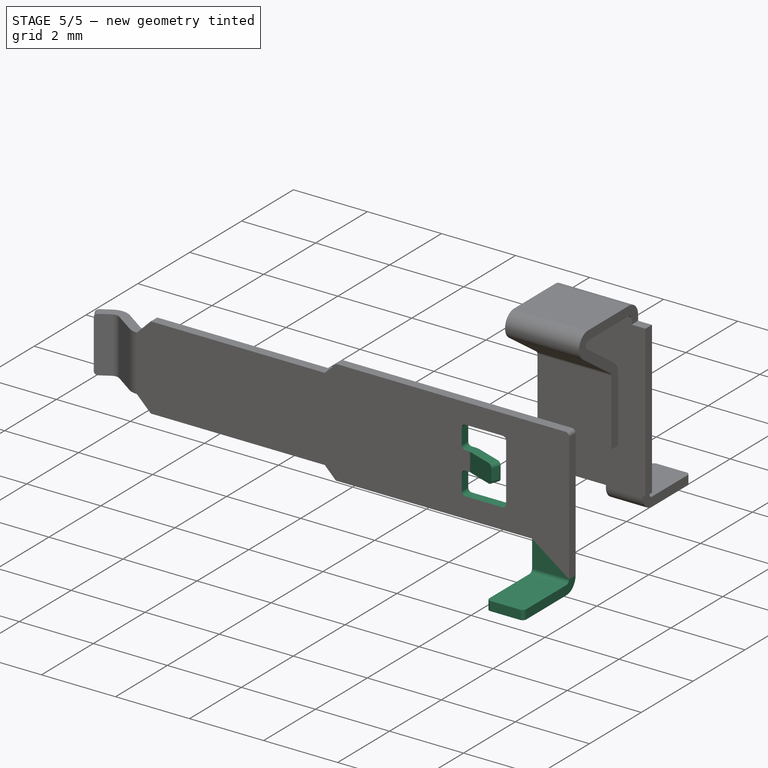
[diagram: stage 5 of 5 — iso view after this stage's code; geometry added in this stage tinted green]
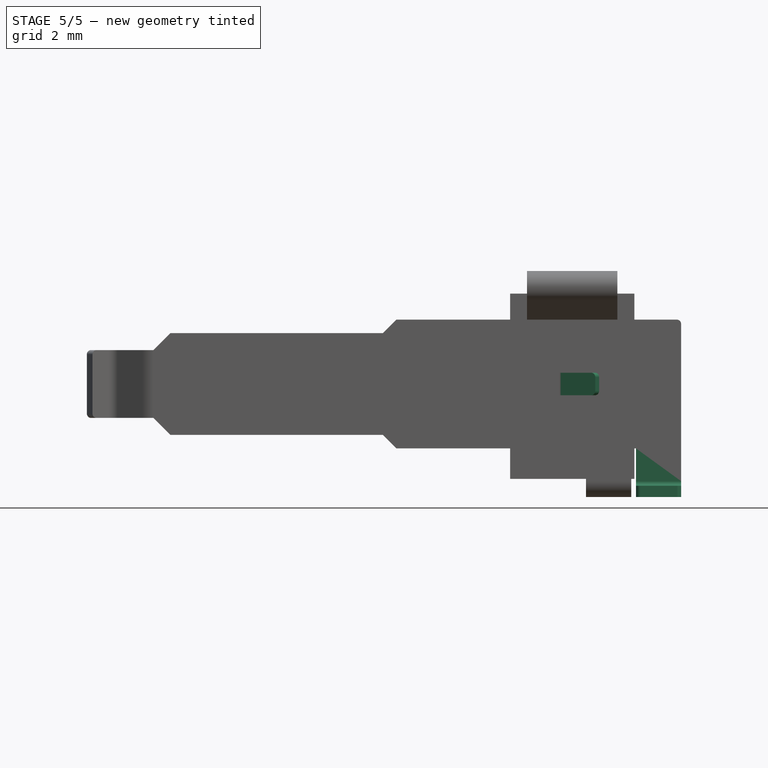
[diagram: stage 5 of 5 — front view after this stage's code; geometry added in this stage tinted green]
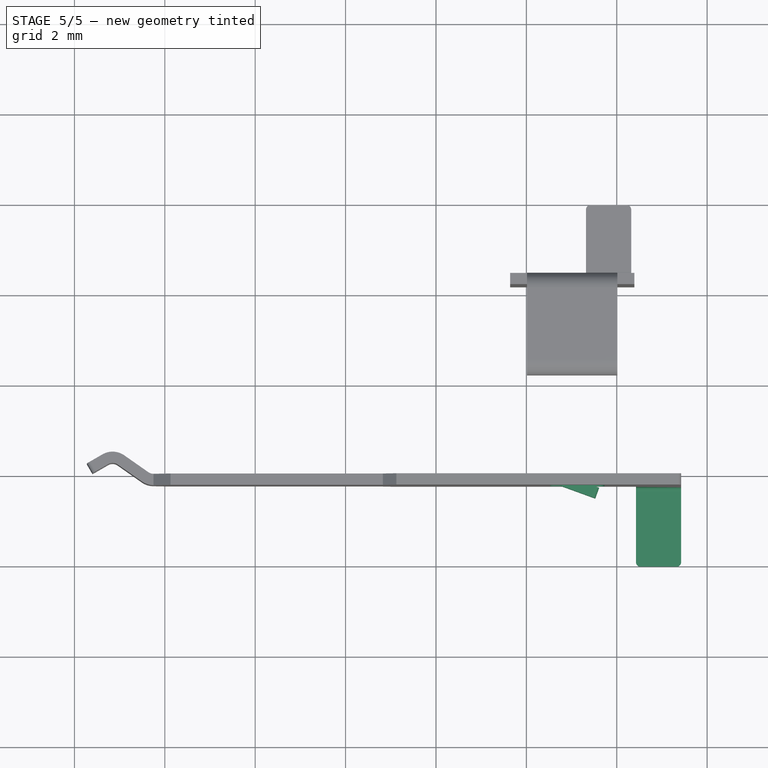
[diagram: stage 5 of 5 — top view after this stage's code; geometry added in this stage tinted green]
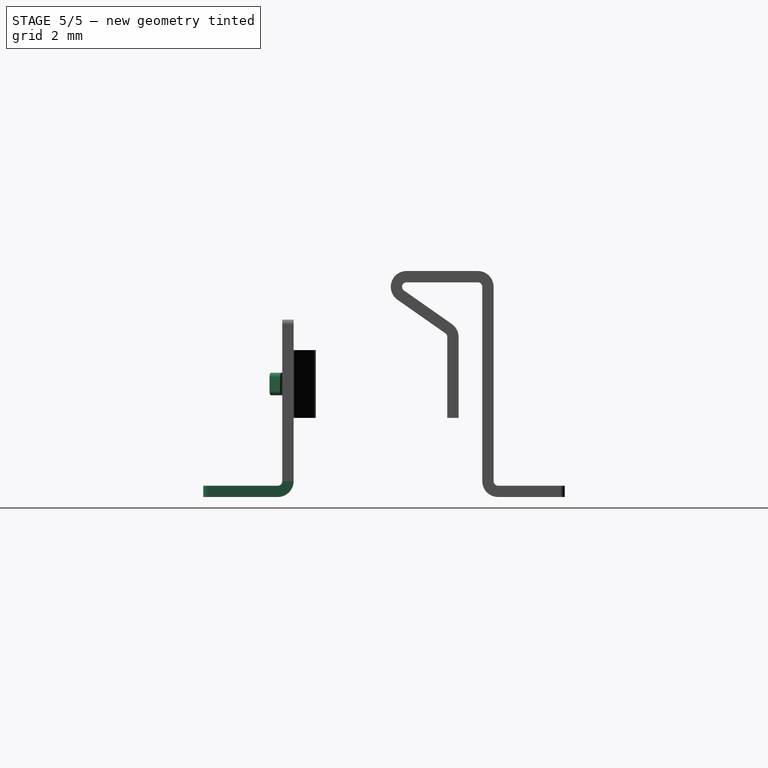
[diagram: stage 5 of 5 — right view after this stage's code; geometry added in this stage tinted green]
FEATURE [Sketcher::SketchObject] Sketch018
  ArcFitTolerance = 1e-06
  AttachmentSupport = -> [AdditivePipe]
  ExternalGeometry = -> [AdditivePipe]
  FullyConstrained = true
  MakeInternals = false
  MapMode = 5
  Placement = pos=(0,2e-16,1.075) rot=(1,0,0;3.14159rad)
  sketch-geometry (4):
    g0: LineSegment StartX=4.425 StartY=2 StartZ=0 EndX=4.425 EndY=2.25 EndZ=0
    g1: LineSegment StartX=4.425 StartY=2.25 StartZ=0 EndX=5.425 EndY=2.25 EndZ=0
    g2: LineSegment StartX=5.425 StartY=2.25 StartZ=0 EndX=5.425 EndY=2 EndZ=0
    g3: LineSegment StartX=4.425 StartY=2 StartZ=0 EndX=5.425 EndY=2 EndZ=0
  constraints (11):
    c: Coincident(g0,g1)
    c: Coincident(g1,g2)
    c: Horizontal(g1)
    c: Vertical(g0)
    c: Coincident(g1,g-3)
    c: DistanceX(g0,g2) = 1
    c: Coincident(g3,g0)
    c: Coincident(g3,g2)
    c: Horizontal(g3)
    c: Vertical(g2)
    c: PointOnObject(g2,g-4)
FEATURE [Sketcher::SketchObject] Sketch019
  ArcFitTolerance = 1e-06
  AttachmentSupport = -> [AdditivePipe]
  ExternalGeometry = -> [AdditivePipe,Binder]
  FullyConstrained = true
  MakeInternals = false
  MapMode = 5
  Placement = pos=(5.425,0,0) rot=(0.57735,0.57735,0.57735;2.0944rad)
  sketch-geometry (3):
    g0: LineSegment StartX=-2 StartY=3.25 StartZ=0 EndX=-2 EndY=0.35 EndZ=0
    g1: ArcOfCircle CenterX=-2.35 CenterY=0.35 CenterZ=0 NormalX=0 NormalY=0 NormalZ=1 AngleXU=0 Radius=0.35 StartAngle=4.71239 EndAngle=6.28319
    g2: LineSegment StartX=-2.35 StartY=0 StartZ=0 EndX=-4 EndY=0 EndZ=0
  constraints (8):
    c: Coincident(g0,g-3)
    c: Vertical(g0)
    c: Tangent(g1,g0) = 1.5708
    c: Horizontal(g2)
    c: Tangent(g2,g1) = 1.5708
    c: Radius(g1) = 0.35
    c: Horizontal(g-4,g2)
    c: DistanceX(g2,g-1) = 4
FEATURE [PartDesign::AdditivePipe] AdditivePipe001  label="AdditivePipe-Leg"
  AuxilleryCurvelinear = true
  AuxillerySpineTangent = false
  BaseFeature = -> AdditivePipe
  Binormal = (0,0,0)
  Mode = 0
  Profile = -> Sketch018
  Refine = true
  Spine = -> Sketch019
  SpineTangent = false
  Suppressed = false
  Transformation = 0
  Transition = 0
FEATURE [PartDesign::Fillet] Fillet
  Base = -> AdditivePipe001 [Edge64,Edge65]
  BaseFeature = -> AdditivePipe001
  Radius = 0.1
  Refine = true
  SupportTransform = false
  Suppressed = false
  UseAllEdges = false
FEATURE [Sketcher::SketchObject] Sketch024
  ArcFitTolerance = 1e-06
  AttachmentSupport = -> [Fillet]
  ExternalGeometry = -> [Binder,Fillet]
  FullyConstrained = true
  MakeInternals = false
  MapMode = 5
  Placement = pos=(0,-2.25,0) rot=(1,0,0;1.5708rad)
  sketch-geometry (17):
    g0: LineSegment StartX=2.625 StartY=3.375 StartZ=0 EndX=3.625 EndY=3.375 EndZ=0
    g1: ArcOfCircle CenterX=3.625 CenterY=3.275 CenterZ=0 NormalX=0 NormalY=0 NormalZ=1 AngleXU=0 Radius=0.1 StartAngle=1.9e-15 EndAngle=1.5708
    g2: LineSegment StartX=3.725 StartY=3.275 StartZ=0 EndX=3.725 EndY=1.725 EndZ=0
    g3: ArcOfCircle CenterX=3.625 CenterY=1.725 CenterZ=0 NormalX=0 NormalY=0 NormalZ=1 AngleXU=0 Radius=0.1 StartAngle=4.71239 EndAngle=6.28319
    g4: LineSegment StartX=3.625 StartY=1.625 StartZ=0 EndX=2.625 EndY=1.625 EndZ=0
    g5: LineSegment StartX=2.525 StartY=1.725 StartZ=0 EndX=2.525 EndY=2.25 EndZ=0
    g6: LineSegment StartX=2.525 StartY=2.25 StartZ=0 EndX=2.625 EndY=2.25 EndZ=0
    g7: LineSegment StartX=2.625 StartY=2.75 StartZ=0 EndX=2.525 EndY=2.75 EndZ=0
    g8: LineSegment StartX=2.625 StartY=2.75 StartZ=0 EndX=2.625 EndY=2.25 EndZ=0
    g9: LineSegment StartX=2.525 StartY=2.75 StartZ=0 EndX=2.525 EndY=3.275 EndZ=0
    g10: ArcOfCircle CenterX=2.625 CenterY=3.275 CenterZ=0 NormalX=0 NormalY=0 NormalZ=1 AngleXU=0 Radius=0.1 StartAngle=1.5708 EndAngle=3.14159
    g11: ArcOfCircle CenterX=2.625 CenterY=1.725 CenterZ=0 NormalX=0 NormalY=0 NormalZ=1 AngleXU=0 Radius=0.1 StartAngle=3.14159 EndAngle=4.71239
    g12: GeomPoint X=3.725 Y=2.5 Z=0
    g13: LineSegment [constr] StartX=3.725 StartY=2.5 StartZ=0 EndX=3.725 EndY=3.925 EndZ=0
    g14: LineSegment [constr] StartX=3.725 StartY=2.5 StartZ=0 EndX=3.725 EndY=1.075 EndZ=0
    g15: GeomPoint [constr] X=3.125 Y=1.625 Z=0
    g16: LineSegment [constr] StartX=3.125 StartY=1.625 StartZ=0 EndX=3.125 EndY=1.5 EndZ=0
  constraints (42):
    c: Horizontal(g0)
    c: Tangent(g0,g1) = 1.5708
    c: Vertical(g2)
    c: Tangent(g2,g3) = 1.5708
    c: Horizontal(g4)
    c: Coincident(g6,g5)
    c: Coincident(g8,g7)
    c: Coincident(g8,g6)
    c: Vertical(g8)
    c: Coincident(g9,g7)
    c: Vertical(g9)
    c: Horizontal(g7)
    c: Horizontal(g6)
    c: Vertical(g5)
    c: Vertical(g5,g7)
    c: Equal(g3,g1)
    c: Equal(g1,g10)
    c: Equal(g10,g11)
    c: Radius(g11) = 0.1
    c: Equal(g9,g5)
    c: Tangent(g11,g5) = 1.5708
    c: Tangent(g11,g4) = 1.5708
    c: Tangent(g3,g4) = 1.5708
    c: Tangent(g1,g2) = 1.5708
    c: Tangent(g10,g0) = 1.5708
    c: Tangent(g10,g9) = 1.5708
    c: DistanceY(g8,g8) = 0.5
    c: Distance(g4,g0) = 1.75
    c: Symmetric(g2,g2,g12)
    c: Coincident(g13,g12)
    c: PointOnObject(g13,g-5)
    c: Coincident(g14,g12)
    c: PointOnObject(g14,g-4)
    c: Equal(g14,g13)
    c: Vertical(g13)
    c: Vertical(g14)
    c: Symmetric(g4,g4,g15)
    c: Coincident(g16,g15)
    c: Symmetric(g-3,g-3,g16)
    c: Vertical(g16)
    c: Distance(g7,g2) = 1.2
    c: DistanceX(g6,g6) = 0.1
FEATURE [PartDesign::Pocket] Pocket012  label="Pocket-TabCutout"
  BaseFeature = -> Fillet
  Direction = (0,1,-2e-16)
  Length = 5
  Length2 = 5
  Profile = -> Sketch024
  ReferenceAxis = -> Sketch024 [N_Axis]
  Refine = true
  Suppressed = false
  Type = 2
FEATURE [Sketcher::SketchObject] Sketch025  label="Sketch-TabPath"
  ArcFitTolerance = 1e-06
  AttachmentSupport = -> [Pocket012]
  ExternalGeometry = -> [Pocket012]
  FullyConstrained = true
  MakeInternals = false
  MapMode = 5
  Placement = pos=(0,6e-16,2.75) rot=(0,0,1;0rad)
  sketch-geometry (3):
    g0: LineSegment StartX=2.625 StartY=-2.25 StartZ=0 EndX=2.725 EndY=-2.25 EndZ=0
    g1: ArcOfCircle CenterX=2.725 CenterY=-2.35 CenterZ=0 NormalX=0 NormalY=0 NormalZ=1 AngleXU=0 Radius=0.1 StartAngle=1.22173 EndAngle=1.5708
    g2: LineSegment StartX=2.7592 StartY=-2.25603 StartZ=0 EndX=3.525 EndY=-2.53476 EndZ=0
  constraints (8):
    c: Coincident(g0,g-3)
    c: PointOnObject(g0,g-5)
    c: Tangent(g2,g1) = 1.5708
    c: Tangent(g1,g0) = 1.5708
    c: Radius(g1) = 0.1
    c: Angle(g2,g-5) = 0.349066
    c: DistanceX(g-6,g2) = 1
    c: Distance(g0,g0) = 0.1
FEATURE [PartDesign::AdditivePipe] AdditivePipe004
  AuxilleryCurvelinear = true
  AuxillerySpineTangent = false
  BaseFeature = -> Pocket012
  Binormal = (0,0,0)
  Mode = 0
  Profile = -> Pocket012 [Face32]
  Refine = true
  Spine = -> Sketch025
  SpineTangent = false
  Suppressed = false
  Transformation = 0
  Transition = 0
FEATURE [PartDesign::Fillet] Fillet001
  Base = -> AdditivePipe004 [Edge102,Edge100,Edge110,Edge126,Edge71,Edge10,Edge37]
  BaseFeature = -> AdditivePipe004
  Radius = 0.1
  Refine = true
  SupportTransform = false
  Suppressed = false
  UseAllEdges = false
FEATURE [PartDesign::Body] Body002  label="Tip"
  AllowCompound = false
  Group = -> [Binder001,Sketch,Pad,Sketch020,Sketch021,AdditivePipe002,Sketch022,Sketch023,AdditivePipe003,Fillet002]
  Origin = -> Origin005
  Tip = -> Fillet002
FEATURE [PartDesign::FeatureBase] Clone
  BaseFeature = -> Body002
  Suppressed = false
FEATURE [PartDesign::Body] Body003  label="Ring1"
  AllowCompound = false
  Group = -> [Clone]
  Origin = -> Origin006
  Placement = pos=(-4,0,0) rot=(0,0,1;0rad)
  Tip = -> Clone
FEATURE [PartDesign::FeatureBase] Clone001
  BaseFeature = -> Body002
  Suppressed = false
FEATURE [PartDesign::Body] Body004  label="Ring2"
  AllowCompound = false
  Group = -> [Clone001]
  Origin = -> Origin007
  Placement = pos=(-7,0,0) rot=(0,0,1;0rad)
  Tip = -> Clone001
FEATURE [App::Part] Part001  label="Pins"
  Group = -> [Body,Body002,Body003,Body004]
  Origin = -> Origin001
FEATURE [App::Part] Part  label="Jack_3.5mm_PJ320D_Horizontal"
  Group = -> [Body001,Part001]
  Origin = -> Origin
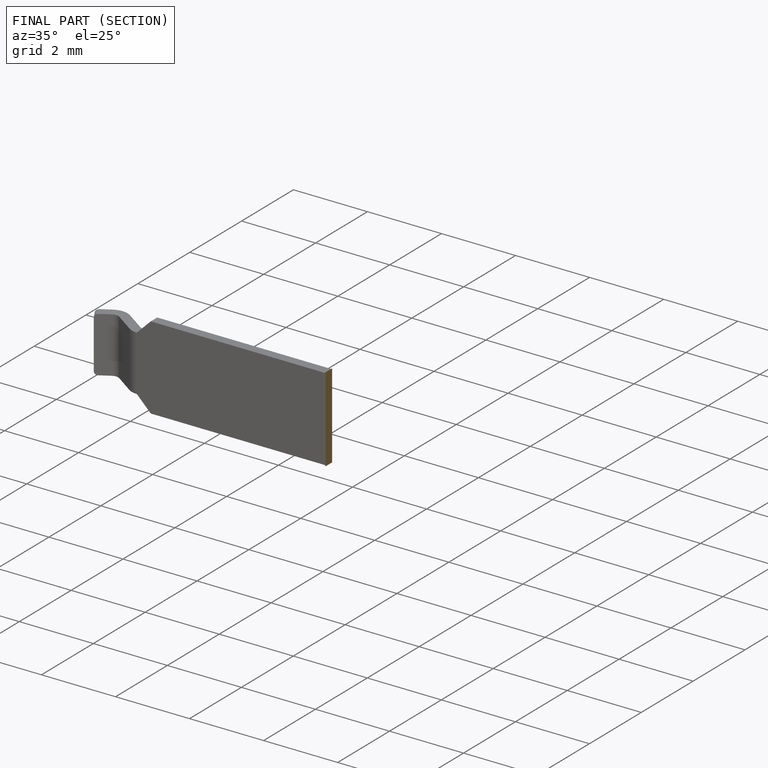
[diagram: finished part — half-section view (interior)]
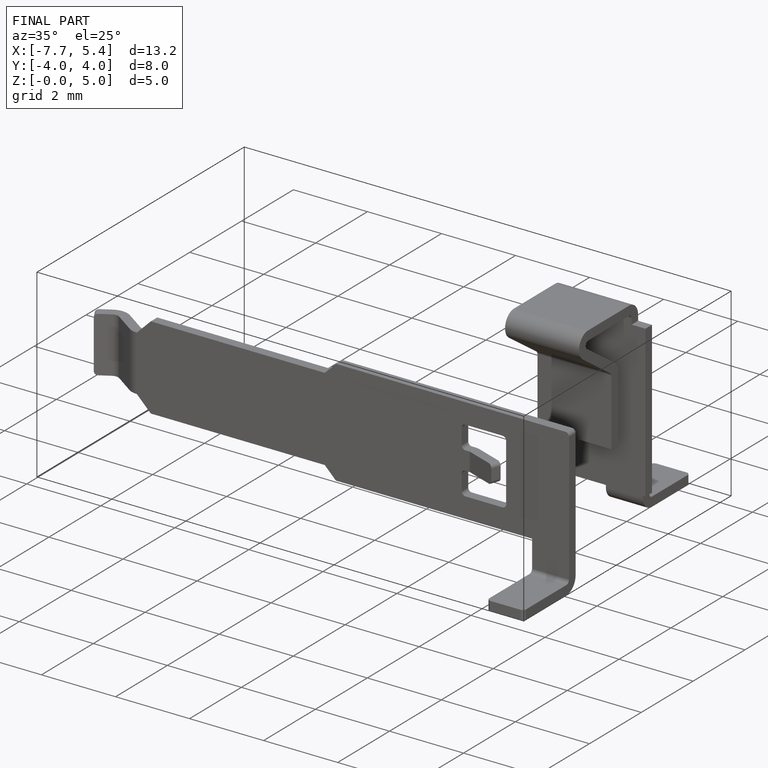
[diagram: finished part — iso view with bounding-box wireframe]
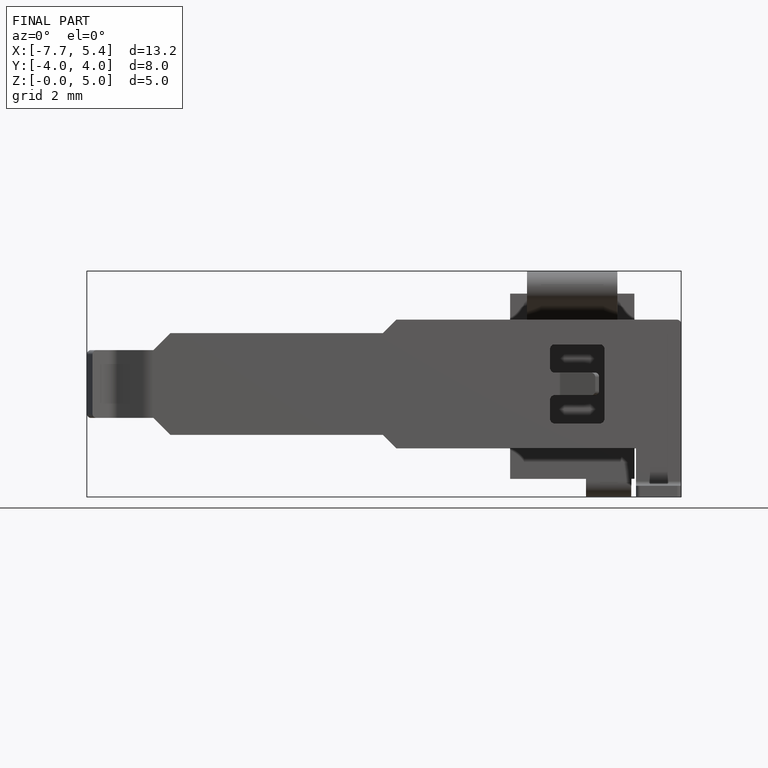
[diagram: finished part — front view with bounding-box wireframe]
